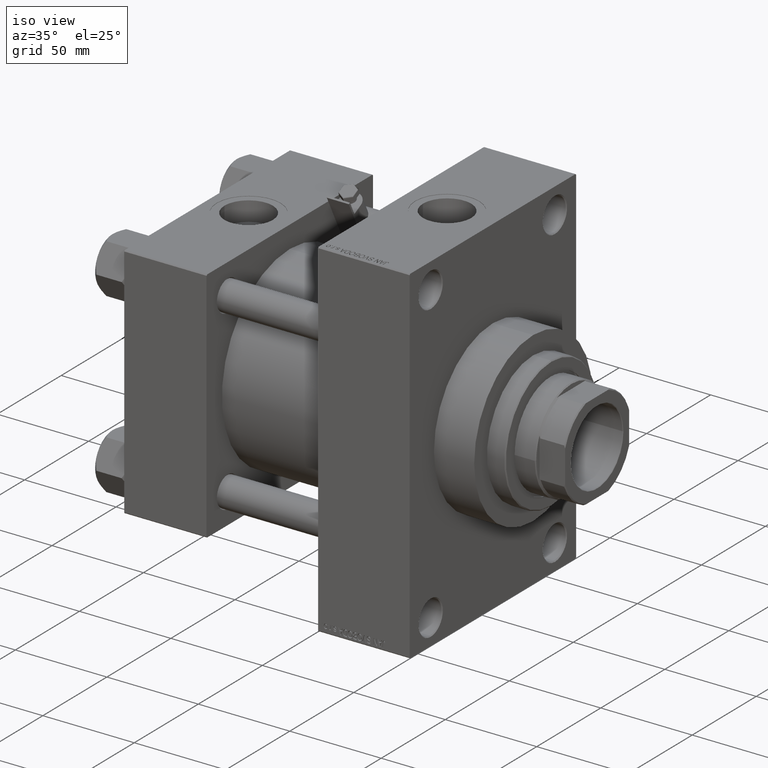
[diagram: clean part render]
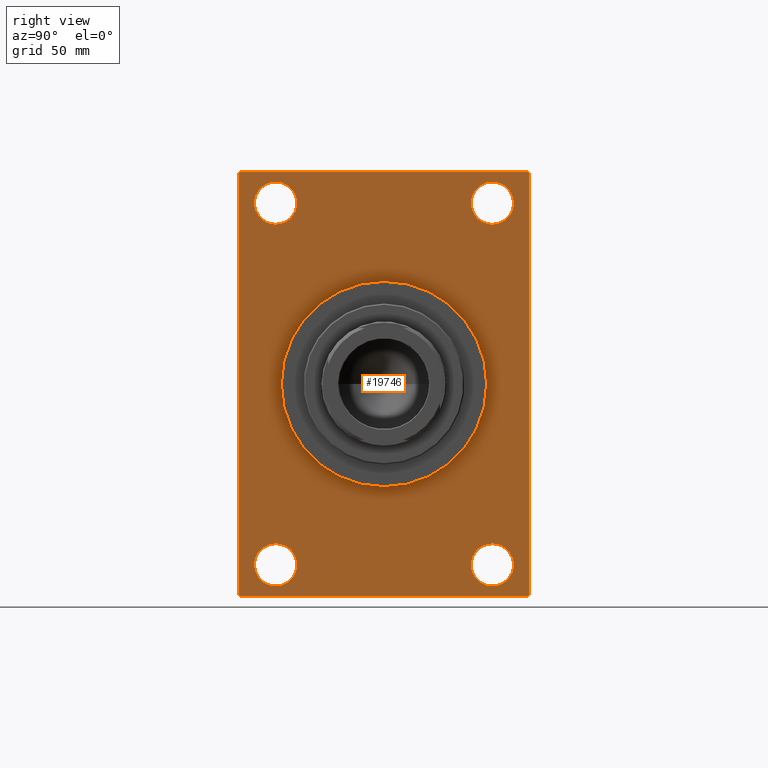
[diagram: tour spotlight — one face highlighted and labeled with its STEP entity id]
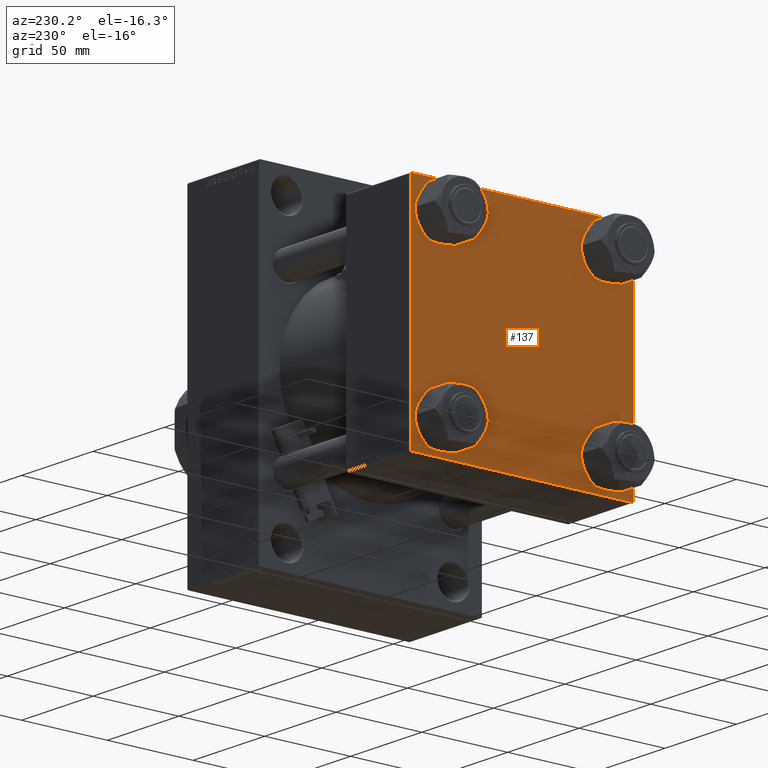
[diagram: tour spotlight — one face highlighted and labeled with its STEP entity id]
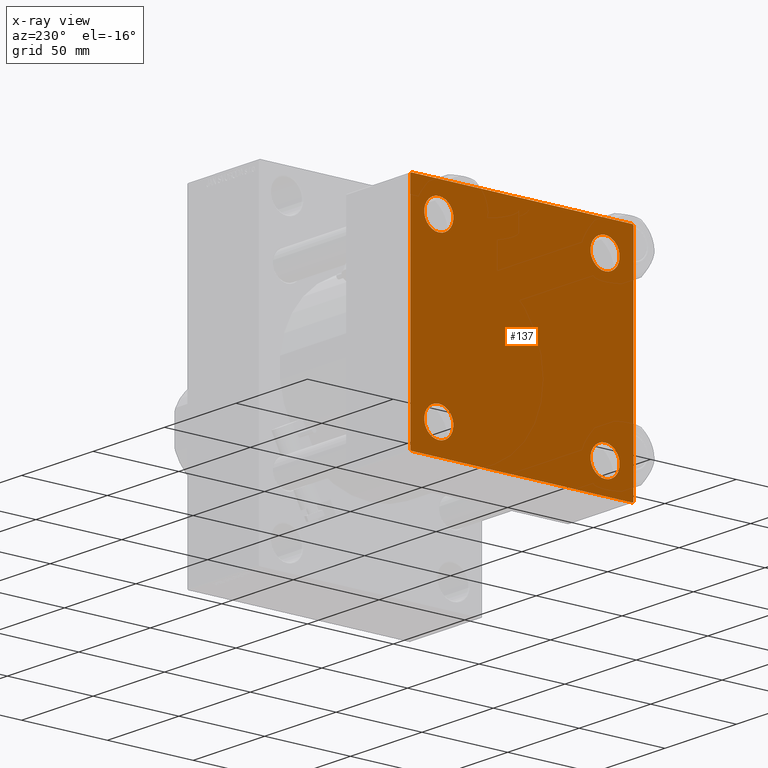
[diagram: x-ray of the same camera — body ghosted, this tour face saturated]
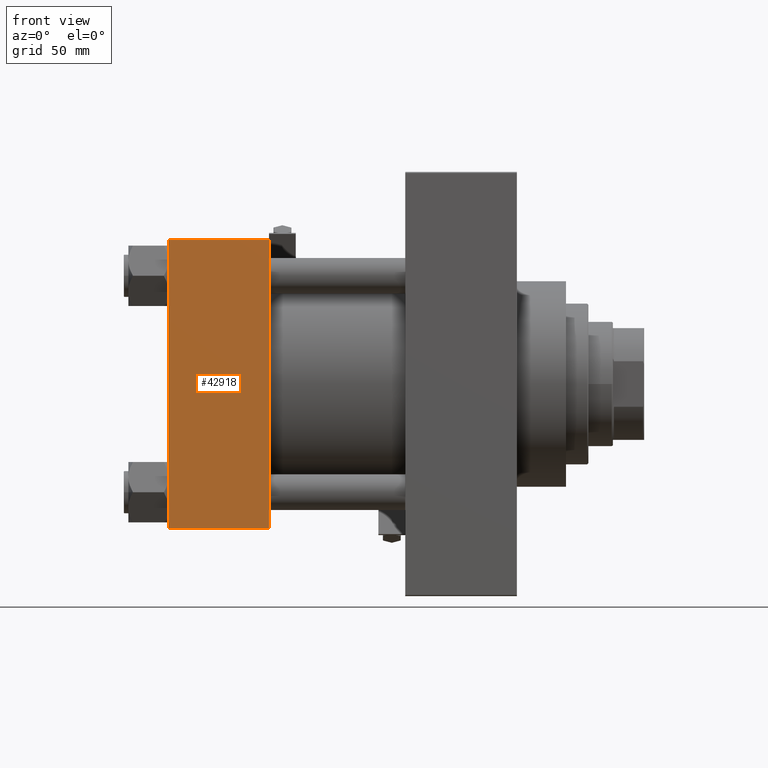
[diagram: tour spotlight — one face highlighted and labeled with its STEP entity id]
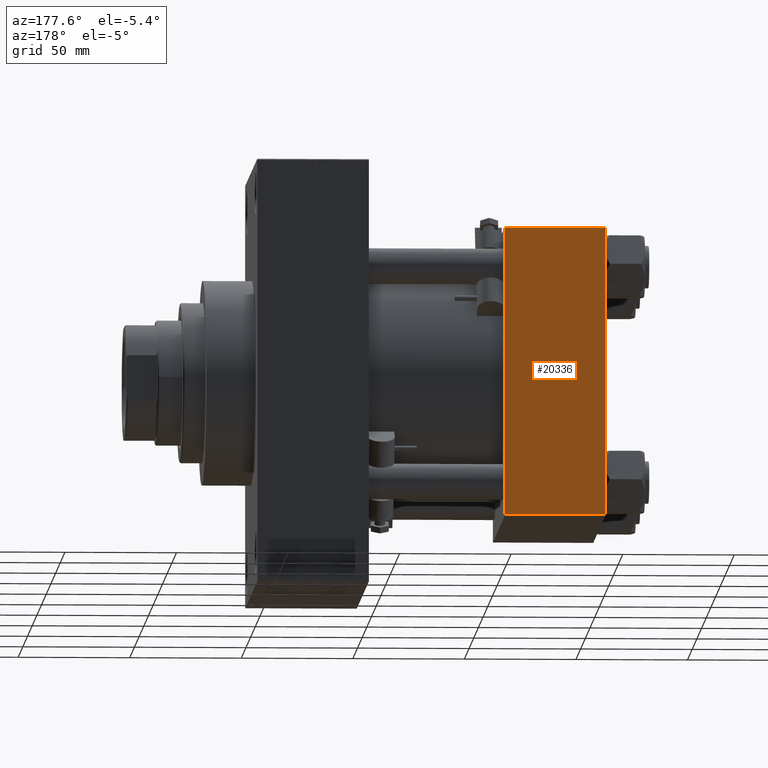
[diagram: tour spotlight — one face highlighted and labeled with its STEP entity id]
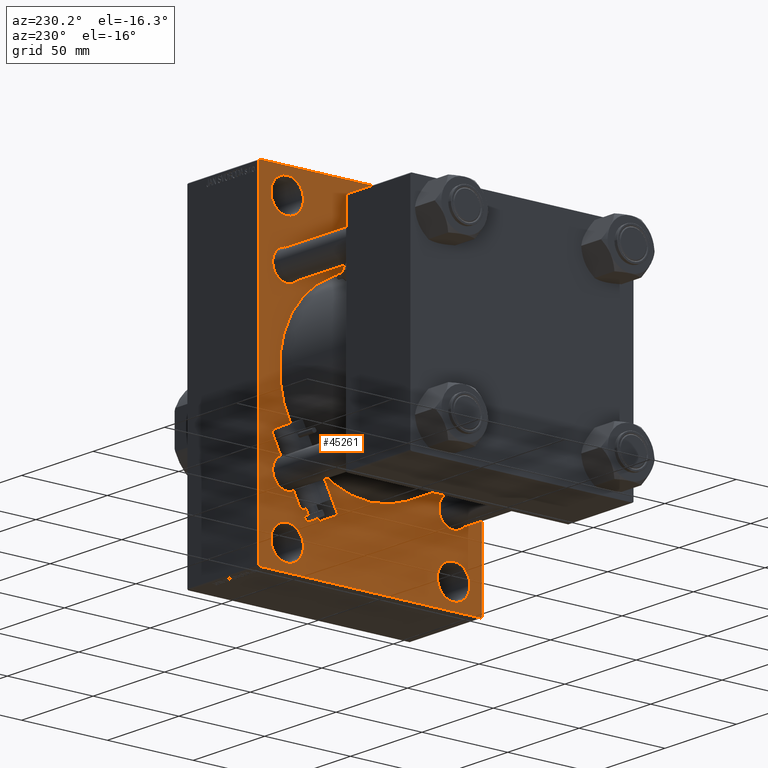
[diagram: tour spotlight — one face highlighted and labeled with its STEP entity id]
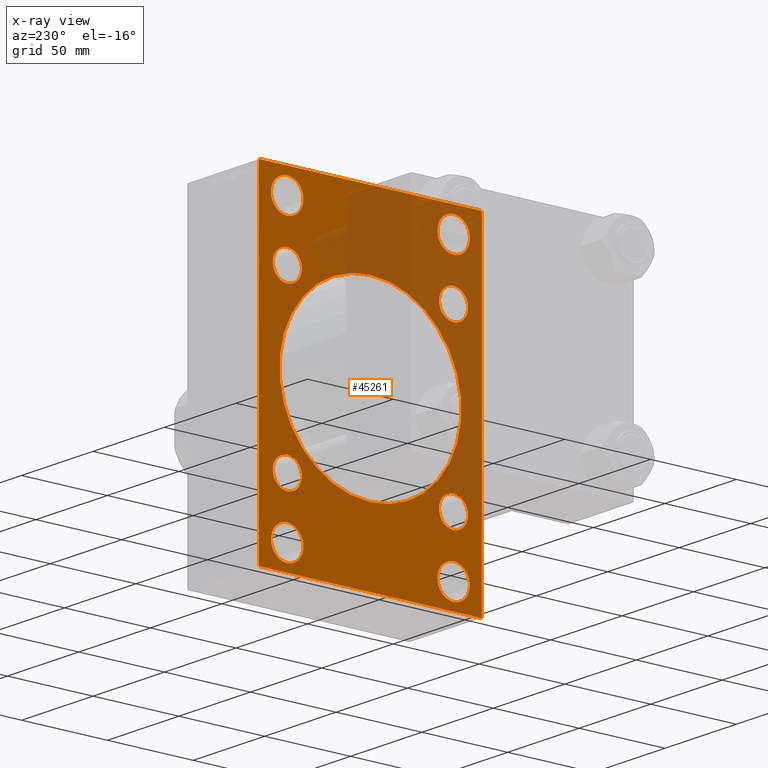
[diagram: x-ray of the same camera — body ghosted, this tour face saturated]
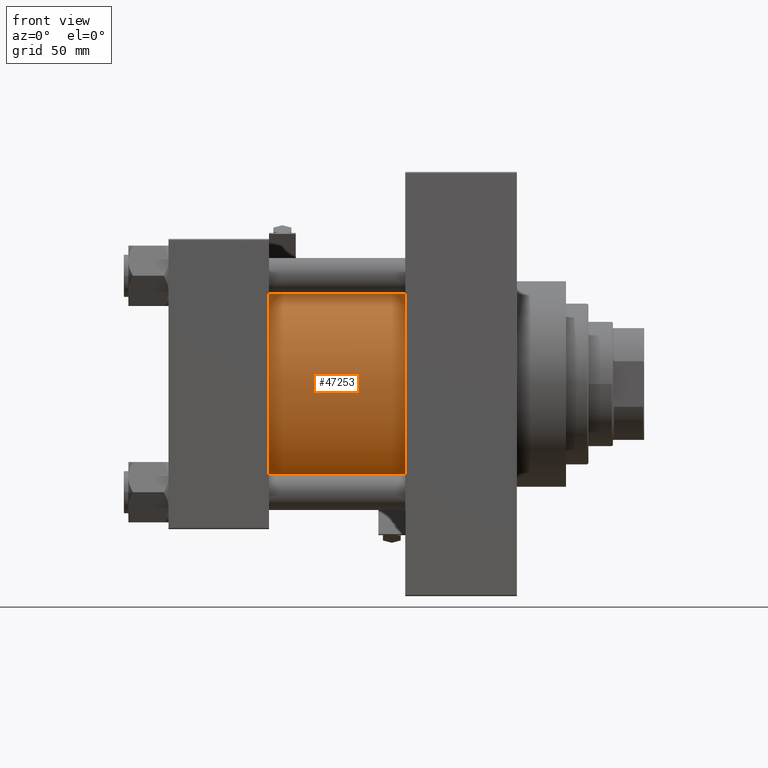
[diagram: tour spotlight — one face highlighted and labeled with its STEP entity id]
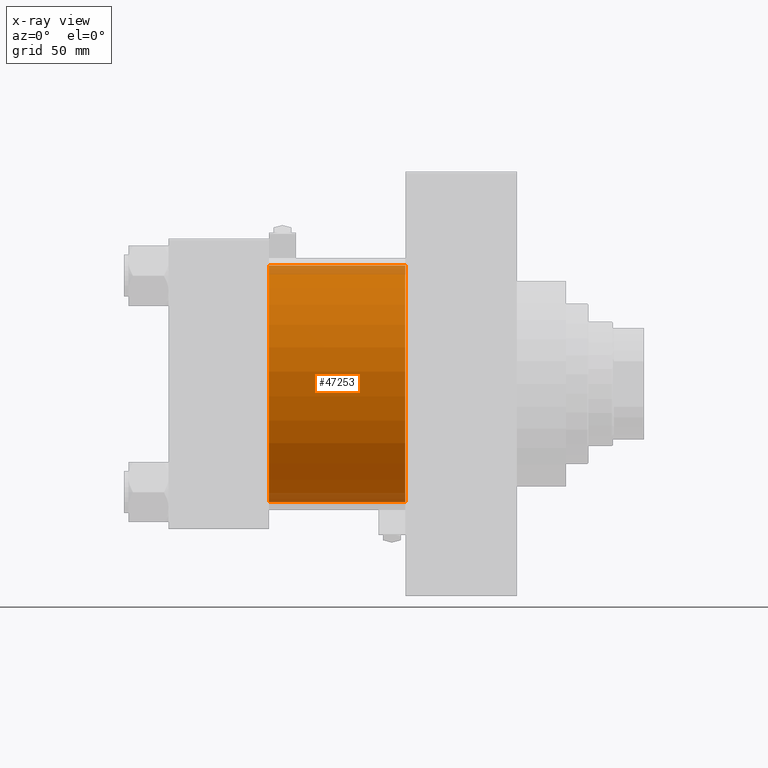
[diagram: x-ray of the same camera — body ghosted, this tour face saturated]
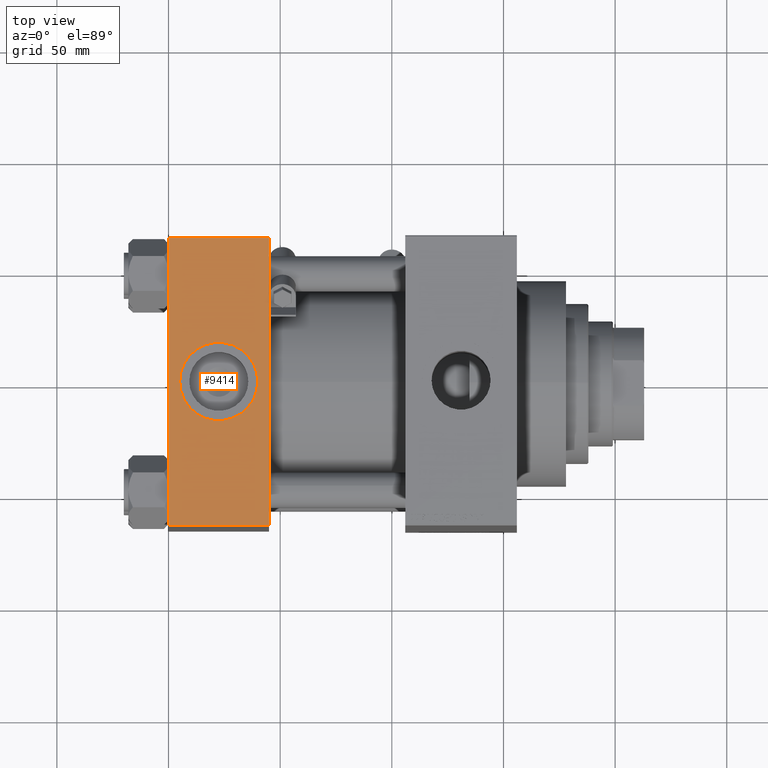
[diagram: tour spotlight — one face highlighted and labeled with its STEP entity id]
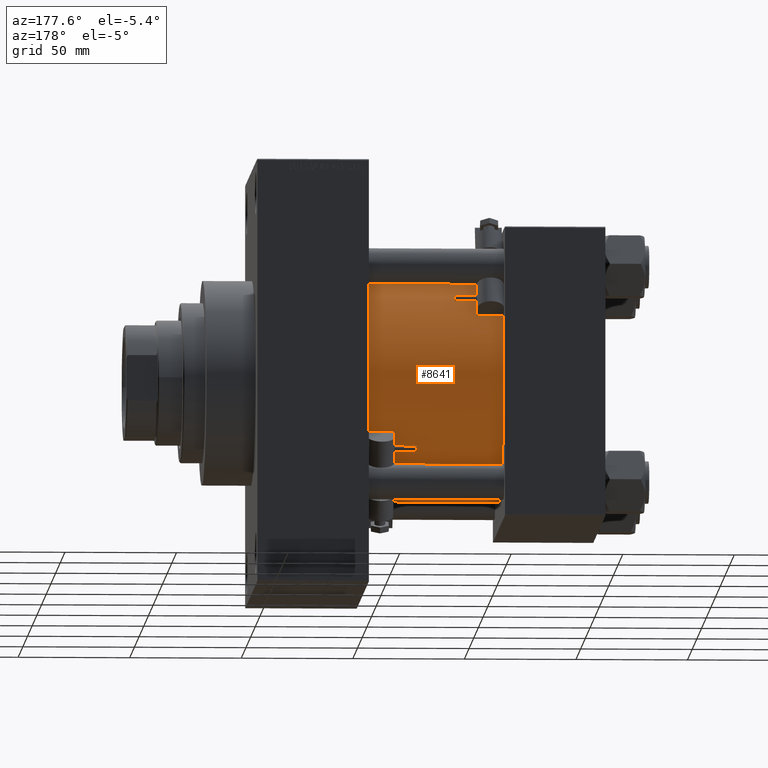
[diagram: tour spotlight — one face highlighted and labeled with its STEP entity id]
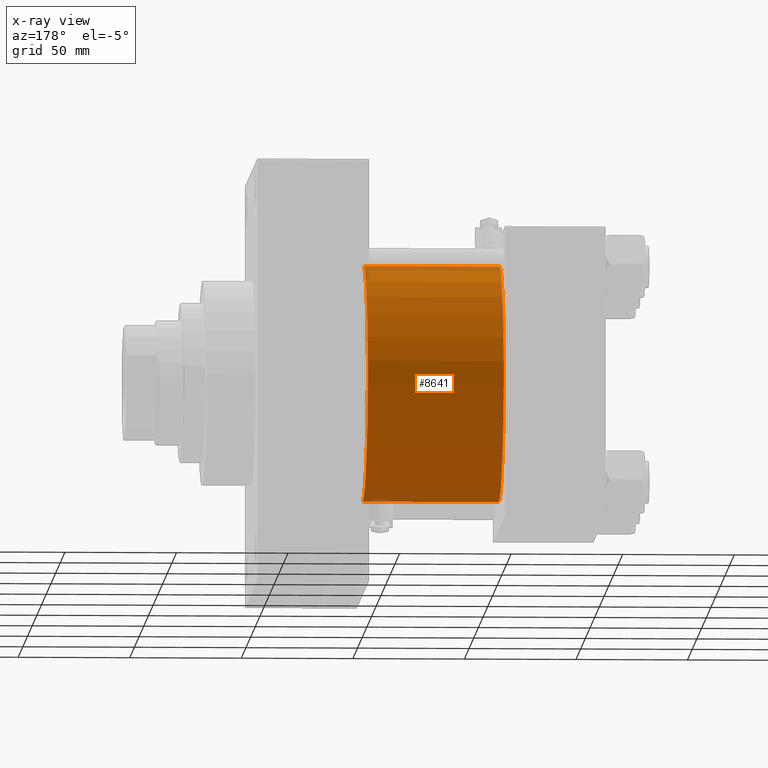
[diagram: x-ray of the same camera — body ghosted, this tour face saturated]
A machine part: a face-by-face anatomy tour. The part has 1215 B-rep faces; the first image is the clean iso view, then the 8 largest visible faces are spotlighted one at a time (largest first), each with its STEP entity span.

Face 1 — right view, entity #19746. In plain terms, the highlighted planar face has unit normal (-1, 0, 0).
Definition (entity closure, byte-faithful):
#147 = VERTEX_POINT ( 'NONE', #11515 ) ;
#280 = CIRCLE ( 'NONE', #8170, 9.499999999999925393 ) ;
#474 = EDGE_CURVE ( 'NONE', #20619, #24363, #33158, .T. ) ;
#908 = DIRECTION ( 'NONE',  ( 0.000000000000000000, 0.000000000000000000, -1.000000000000000000 ) ) ;
#993 = EDGE_CURVE ( 'NONE', #17164, #23913, #12465, .T. ) ;
#1659 = CARTESIAN_POINT ( 'NONE',  ( 156.0000000000000000, -48.49999999999999289, -71.50000000000008527 ) ) ;
#1674 = EDGE_CURVE ( 'NONE', #23913, #17164, #9984, .T. ) ;
#1685 = DIRECTION ( 'NONE',  ( 0.000000000000000000, 0.000000000000000000, 1.000000000000000000 ) ) ;
#1718 = CARTESIAN_POINT ( 'NONE',  ( 156.0000000000000000, 64.99999999999998579, -94.49999999999997158 ) ) ;
#2656 = VERTEX_POINT ( 'NONE', #10175 ) ;
#2801 = DIRECTION ( 'NONE',  ( 0.000000000000000000, 0.000000000000000000, 1.000000000000000000 ) ) ;
#2954 = LINE ( 'NONE', #33291, #34278 ) ;
#3007 = ORIENTED_EDGE ( 'NONE', *, *, #37174, .T. ) ;
#3268 = AXIS2_PLACEMENT_3D ( 'NONE', #22943, #34543, #19962 ) ;
#3954 = DIRECTION ( 'NONE',  ( -1.000000000000000000, 0.000000000000000000, -0.000000000000000000 ) ) ;
#4682 = ORIENTED_EDGE ( 'NONE', *, *, #47637, .T. ) ;
#4787 = CARTESIAN_POINT ( 'NONE',  ( 156.0000000000000000, 48.50000000000000711, -81.00000000000001421 ) ) ;
#4980 = DIRECTION ( 'NONE',  ( 0.000000000000000000, 0.000000000000000000, 1.000000000000000000 ) ) ;
#5020 = DIRECTION ( 'NONE',  ( 0.000000000000000000, 0.000000000000000000, 1.000000000000000000 ) ) ;
#5025 = VECTOR ( 'NONE', #13543, 999.9999999999998863 ) ;
#5312 = PLANE ( 'NONE',  #23952 ) ;
#5322 = CARTESIAN_POINT ( 'NONE',  ( 156.0000000000000000, -48.50000000000000000, 90.49999999999992895 ) ) ;
#5434 = DIRECTION ( 'NONE',  ( 0.000000000000000000, 0.000000000000000000, 1.000000000000000000 ) ) ;
#5759 = ORIENTED_EDGE ( 'NONE', *, *, #993, .T. ) ;
#5879 = VERTEX_POINT ( 'NONE', #42778 ) ;
#5962 = LINE ( 'NONE', #39047, #14020 ) ;
#7583 = CIRCLE ( 'NONE', #10755, 46.00000000000000000 ) ;
#8170 = AXIS2_PLACEMENT_3D ( 'NONE', #27646, #12822, #5434 ) ;
#8255 = VERTEX_POINT ( 'NONE', #20168 ) ;
#8709 = LINE ( 'NONE', #12889, #8962 ) ;
#8760 = FACE_BOUND ( 'NONE', #40469, .T. ) ;
#8962 = VECTOR ( 'NONE', #38828, 999.9999999999998863 ) ;
#9616 = AXIS2_PLACEMENT_3D ( 'NONE', #38799, #39532, #4980 ) ;
#9984 = CIRCLE ( 'NONE', #16338, 9.499999999999925393 ) ;
#10175 = CARTESIAN_POINT ( 'NONE',  ( 156.0000000000000000, -64.50000000000002842, 94.99999999999997158 ) ) ;
#10752 = EDGE_CURVE ( 'NONE', #42284, #13011, #14287, .T. ) ;
#10755 = AXIS2_PLACEMENT_3D ( 'NONE', #41945, #46356, #27594 ) ;
#11515 = CARTESIAN_POINT ( 'NONE',  ( 156.0000000000000000, 64.99999999999997158, 94.49999999999991473 ) ) ;
#11558 = CARTESIAN_POINT ( 'NONE',  ( 156.0000000000000000, 5.633375276077824704E-15, -46.00000000000000000 ) ) ;
#12205 = DIRECTION ( 'NONE',  ( 0.000000000000000000, -1.000000000000000000, 0.000000000000000000 ) ) ;
#12345 = ORIENTED_EDGE ( 'NONE', *, *, #42370, .T. ) ;
#12433 = EDGE_CURVE ( 'NONE', #46965, #8255, #28545, .T. ) ;
#12465 = CIRCLE ( 'NONE', #29013, 9.499999999999925393 ) ;
#12543 = VERTEX_POINT ( 'NONE', #44198 ) ;
#12558 = ORIENTED_EDGE ( 'NONE', *, *, #10752, .T. ) ;
#12822 = DIRECTION ( 'NONE',  ( -1.000000000000000000, 0.000000000000000000, -0.000000000000000000 ) ) ;
#12836 = DIRECTION ( 'NONE',  ( 0.000000000000000000, 0.000000000000000000, 1.000000000000000000 ) ) ;
#12889 = CARTESIAN_POINT ( 'NONE',  ( 156.0000000000000000, -65.00000000000001421, 94.49999999999994316 ) ) ;
#13011 = VERTEX_POINT ( 'NONE', #13772 ) ;
#13429 = DIRECTION ( 'NONE',  ( -1.000000000000000000, 0.000000000000000000, -0.000000000000000000 ) ) ;
#13543 = DIRECTION ( 'NONE',  ( -0.000000000000000000, 0.7071067811865574537, 0.7071067811865376918 ) ) ;
#13572 = VECTOR ( 'NONE', #37813, 1000.000000000000114 ) ;
#13772 = CARTESIAN_POINT ( 'NONE',  ( 156.0000000000000000, 48.50000000000000711, -90.49999999999994316 ) ) ;
#13892 = CARTESIAN_POINT ( 'NONE',  ( 156.0000000000000000, 48.50000000000000711, 90.49999999999992895 ) ) ;
#14020 = VECTOR ( 'NONE', #20526, 1000.000000000000000 ) ;
#14287 = CIRCLE ( 'NONE', #3268, 9.499999999999925393 ) ;
#14575 = ORIENTED_EDGE ( 'NONE', *, *, #474, .F. ) ;
#14703 = CIRCLE ( 'NONE', #17853, 9.499999999999925393 ) ;
#15368 = CARTESIAN_POINT ( 'NONE',  ( 156.0000000000000000, -48.49999999999999289, -81.00000000000001421 ) ) ;
#15742 = CARTESIAN_POINT ( 'NONE',  ( 156.0000000000000000, 0.000000000000000000, 0.000000000000000000 ) ) ;
#16338 = AXIS2_PLACEMENT_3D ( 'NONE', #20014, #17036, #12836 ) ;
#16898 = DIRECTION ( 'NONE',  ( -0.000000000000000000, 0.000000000000000000, 1.000000000000000000 ) ) ;
#17036 = DIRECTION ( 'NONE',  ( -1.000000000000000000, 0.000000000000000000, -0.000000000000000000 ) ) ;
#17164 = VERTEX_POINT ( 'NONE', #5322 ) ;
#17231 = CARTESIAN_POINT ( 'NONE',  ( 156.0000000000000000, -48.49999999999999289, -90.49999999999994316 ) ) ;
#17312 = EDGE_LOOP ( 'NONE', ( #32033, #19337 ) ) ;
#17413 = ORIENTED_EDGE ( 'NONE', *, *, #43749, .T. ) ;
#17557 = CARTESIAN_POINT ( 'NONE',  ( 156.0000000000000000, -48.50000000000000000, 71.50000000000007105 ) ) ;
#17853 = AXIS2_PLACEMENT_3D ( 'NONE', #4787, #39337, #5020 ) ;
#18366 = DIRECTION ( 'NONE',  ( 0.000000000000000000, -1.000000000000000000, -1.067522139062650425E-16 ) ) ;
#18526 = EDGE_CURVE ( 'NONE', #41124, #18594, #42855, .T. ) ;
#18558 = CARTESIAN_POINT ( 'NONE',  ( 156.0000000000000000, -65.00000000000001421, -94.50000000000002842 ) ) ;
#18594 = VERTEX_POINT ( 'NONE', #17231 ) ;
#18597 = DIRECTION ( 'NONE',  ( -1.000000000000000000, 0.000000000000000000, -0.000000000000000000 ) ) ;
#18824 = LINE ( 'NONE', #44987, #13572 ) ;
#19337 = ORIENTED_EDGE ( 'NONE', *, *, #12433, .T. ) ;
#19746 = ADVANCED_FACE ( 'NONE', ( #47012, #8760, #23809, #39131, #32433, #46523 ), #5312, .F. ) ;
#19962 = DIRECTION ( 'NONE',  ( 0.000000000000000000, 0.000000000000000000, 1.000000000000000000 ) ) ;
#20014 = CARTESIAN_POINT ( 'NONE',  ( 156.0000000000000000, -48.50000000000000000, 81.00000000000000000 ) ) ;
#20168 = CARTESIAN_POINT ( 'NONE',  ( 156.0000000000000000, 48.50000000000000711, 71.50000000000007105 ) ) ;
#20187 = ORIENTED_EDGE ( 'NONE', *, *, #46565, .F. ) ;
#20526 = DIRECTION ( 'NONE',  ( 0.000000000000000000, 0.000000000000000000, -1.000000000000000000 ) ) ;
#20619 = VERTEX_POINT ( 'NONE', #35175 ) ;
#21206 = ORIENTED_EDGE ( 'NONE', *, *, #18526, .T. ) ;
#21555 = AXIS2_PLACEMENT_3D ( 'NONE', #15368, #24142, #1685 ) ;
#22943 = CARTESIAN_POINT ( 'NONE',  ( 156.0000000000000000, 48.50000000000000711, -81.00000000000001421 ) ) ;
#23205 = LINE ( 'NONE', #44948, #31257 ) ;
#23809 = FACE_BOUND ( 'NONE', #29627, .T. ) ;
#23913 = VERTEX_POINT ( 'NONE', #17557 ) ;
#23952 = AXIS2_PLACEMENT_3D ( 'NONE', #24052, #13429, #16898 ) ;
#24052 = CARTESIAN_POINT ( 'NONE',  ( 156.0000000000000000, 0.000000000000000000, 0.000000000000000000 ) ) ;
#24142 = DIRECTION ( 'NONE',  ( -1.000000000000000000, 0.000000000000000000, -0.000000000000000000 ) ) ;
#24219 = EDGE_CURVE ( 'NONE', #48540, #12543, #7583, .T. ) ;
#24363 = VERTEX_POINT ( 'NONE', #33480 ) ;
#25761 = EDGE_CURVE ( 'NONE', #147, #40794, #23205, .T. ) ;
#25915 = CARTESIAN_POINT ( 'NONE',  ( 156.0000000000000000, -48.50000000000000000, 81.00000000000000000 ) ) ;
#25941 = DIRECTION ( 'NONE',  ( 0.000000000000000000, 7.304098846218135653E-17, -1.000000000000000000 ) ) ;
#26091 = CARTESIAN_POINT ( 'NONE',  ( 156.0000000000000000, 48.50000000000000711, -71.50000000000008527 ) ) ;
#27117 = EDGE_LOOP ( 'NONE', ( #20187, #29882 ) ) ;
#27360 = VERTEX_POINT ( 'NONE', #27520 ) ;
#27520 = CARTESIAN_POINT ( 'NONE',  ( 156.0000000000000000, -65.00000000000001421, 94.49999999999994316 ) ) ;
#27594 = DIRECTION ( 'NONE',  ( 0.000000000000000000, 0.000000000000000000, -1.000000000000000000 ) ) ;
#27646 = CARTESIAN_POINT ( 'NONE',  ( 156.0000000000000000, 48.50000000000000711, 81.00000000000000000 ) ) ;
#28464 = EDGE_CURVE ( 'NONE', #13011, #42284, #14703, .T. ) ;
#28545 = CIRCLE ( 'NONE', #9616, 9.499999999999925393 ) ;
#29013 = AXIS2_PLACEMENT_3D ( 'NONE', #25915, #3954, #30347 ) ;
#29627 = EDGE_LOOP ( 'NONE', ( #38745, #12558 ) ) ;
#29882 = ORIENTED_EDGE ( 'NONE', *, *, #24219, .F. ) ;
#30341 = CIRCLE ( 'NONE', #41373, 9.499999999999925393 ) ;
#30347 = DIRECTION ( 'NONE',  ( 0.000000000000000000, 0.000000000000000000, 1.000000000000000000 ) ) ;
#30536 = ORIENTED_EDGE ( 'NONE', *, *, #1674, .T. ) ;
#30848 = ORIENTED_EDGE ( 'NONE', *, *, #31933, .T. ) ;
#31098 = EDGE_LOOP ( 'NONE', ( #30848, #17413, #14575, #39487, #45391, #3007, #4682, #38185 ) ) ;
#31169 = VECTOR ( 'NONE', #12205, 1000.000000000000000 ) ;
#31257 = VECTOR ( 'NONE', #25941, 1000.000000000000000 ) ;
#31903 = CIRCLE ( 'NONE', #43747, 46.00000000000000000 ) ;
#31933 = EDGE_CURVE ( 'NONE', #27360, #36361, #5962, .T. ) ;
#32033 = ORIENTED_EDGE ( 'NONE', *, *, #40704, .T. ) ;
#32433 = FACE_BOUND ( 'NONE', #27117, .T. ) ;
#33158 = LINE ( 'NONE', #33411, #43964 ) ;
#33291 = CARTESIAN_POINT ( 'NONE',  ( 156.0000000000000000, -64.49999999999998579, -95.00000000000002842 ) ) ;
#33411 = CARTESIAN_POINT ( 'NONE',  ( 156.0000000000000000, 64.99999999999998579, -95.00000000000001421 ) ) ;
#33480 = CARTESIAN_POINT ( 'NONE',  ( 156.0000000000000000, -64.49999999999998579, -95.00000000000002842 ) ) ;
#34278 = VECTOR ( 'NONE', #40974, 1000.000000000000000 ) ;
#34543 = DIRECTION ( 'NONE',  ( -1.000000000000000000, 0.000000000000000000, -0.000000000000000000 ) ) ;
#35138 = CARTESIAN_POINT ( 'NONE',  ( 156.0000000000000000, 64.99999999999997158, 94.99999999999997158 ) ) ;
#35175 = CARTESIAN_POINT ( 'NONE',  ( 156.0000000000000000, 64.49999999999992895, -95.00000000000001421 ) ) ;
#36247 = CARTESIAN_POINT ( 'NONE',  ( 156.0000000000000000, 64.99999999999998579, -94.49999999999997158 ) ) ;
#36361 = VERTEX_POINT ( 'NONE', #18558 ) ;
#36489 = LINE ( 'NONE', #36247, #5025 ) ;
#37174 = EDGE_CURVE ( 'NONE', #147, #5879, #18824, .T. ) ;
#37779 = EDGE_LOOP ( 'NONE', ( #30536, #5759 ) ) ;
#37813 = DIRECTION ( 'NONE',  ( 0.000000000000000000, -0.7071067811865474617, 0.7071067811865474617 ) ) ;
#38185 = ORIENTED_EDGE ( 'NONE', *, *, #41757, .T. ) ;
#38745 = ORIENTED_EDGE ( 'NONE', *, *, #28464, .T. ) ;
#38799 = CARTESIAN_POINT ( 'NONE',  ( 156.0000000000000000, 48.50000000000000711, 81.00000000000000000 ) ) ;
#38828 = DIRECTION ( 'NONE',  ( -0.000000000000000000, -0.7071067811865180408, -0.7071067811865771047 ) ) ;
#39047 = CARTESIAN_POINT ( 'NONE',  ( 156.0000000000000000, -65.00000000000001421, 94.99999999999997158 ) ) ;
#39131 = FACE_BOUND ( 'NONE', #17312, .T. ) ;
#39337 = DIRECTION ( 'NONE',  ( -1.000000000000000000, 0.000000000000000000, -0.000000000000000000 ) ) ;
#39487 = ORIENTED_EDGE ( 'NONE', *, *, #39981, .T. ) ;
#39532 = DIRECTION ( 'NONE',  ( -1.000000000000000000, 0.000000000000000000, -0.000000000000000000 ) ) ;
#39981 = EDGE_CURVE ( 'NONE', #20619, #40794, #36489, .T. ) ;
#40081 = CARTESIAN_POINT ( 'NONE',  ( 156.0000000000000000, -48.49999999999999289, -81.00000000000001421 ) ) ;
#40469 = EDGE_LOOP ( 'NONE', ( #12345, #21206 ) ) ;
#40704 = EDGE_CURVE ( 'NONE', #8255, #46965, #280, .T. ) ;
#40794 = VERTEX_POINT ( 'NONE', #1718 ) ;
#40974 = DIRECTION ( 'NONE',  ( 0.000000000000000000, 0.7071067811865672237, -0.7071067811865279218 ) ) ;
#41124 = VERTEX_POINT ( 'NONE', #1659 ) ;
#41373 = AXIS2_PLACEMENT_3D ( 'NONE', #40081, #18597, #2801 ) ;
#41757 = EDGE_CURVE ( 'NONE', #2656, #27360, #8709, .T. ) ;
#41945 = CARTESIAN_POINT ( 'NONE',  ( 156.0000000000000000, 0.000000000000000000, 0.000000000000000000 ) ) ;
#42284 = VERTEX_POINT ( 'NONE', #26091 ) ;
#42370 = EDGE_CURVE ( 'NONE', #18594, #41124, #30341, .T. ) ;
#42778 = CARTESIAN_POINT ( 'NONE',  ( 156.0000000000000000, 64.49999999999991473, 94.99999999999997158 ) ) ;
#42855 = CIRCLE ( 'NONE', #21555, 9.499999999999925393 ) ;
#43747 = AXIS2_PLACEMENT_3D ( 'NONE', #15742, #45367, #908 ) ;
#43749 = EDGE_CURVE ( 'NONE', #36361, #24363, #2954, .T. ) ;
#43964 = VECTOR ( 'NONE', #18366, 1000.000000000000000 ) ;
#44198 = CARTESIAN_POINT ( 'NONE',  ( 156.0000000000000000, 0.000000000000000000, 46.00000000000000000 ) ) ;
#44948 = CARTESIAN_POINT ( 'NONE',  ( 156.0000000000000000, 64.99999999999997158, 94.99999999999997158 ) ) ;
#44987 = CARTESIAN_POINT ( 'NONE',  ( 156.0000000000000000, 64.49999999999991473, 94.99999999999997158 ) ) ;
#45367 = DIRECTION ( 'NONE',  ( 1.000000000000000000, 0.000000000000000000, 0.000000000000000000 ) ) ;
#45391 = ORIENTED_EDGE ( 'NONE', *, *, #25761, .F. ) ;
#46356 = DIRECTION ( 'NONE',  ( 1.000000000000000000, 0.000000000000000000, 0.000000000000000000 ) ) ;
#46523 = FACE_OUTER_BOUND ( 'NONE', #31098, .T. ) ;
#46565 = EDGE_CURVE ( 'NONE', #12543, #48540, #31903, .T. ) ;
#46736 = LINE ( 'NONE', #35138, #31169 ) ;
#46965 = VERTEX_POINT ( 'NONE', #13892 ) ;
#47012 = FACE_BOUND ( 'NONE', #37779, .T. ) ;
#47637 = EDGE_CURVE ( 'NONE', #5879, #2656, #46736, .T. ) ;
#48540 = VERTEX_POINT ( 'NONE', #11558 ) ;

Face 2 — auxiliary view, entity #137. An x-ray twin of the same camera follows (body ghosted, this face saturated) — the face is partly hidden behind the body. In plain terms, the highlighted planar face has unit normal (-1, 0, 0).
Definition (entity closure, byte-faithful):
#121 = AXIS2_PLACEMENT_3D ( 'NONE', #42815, #385, #34906 ) ;
#137 = ADVANCED_FACE ( 'NONE', ( #19657, #42362, #880, #31232, #37912 ), #15714, .T. ) ;
#352 = EDGE_CURVE ( 'NONE', #30111, #42662, #3790, .T. ) ;
#385 = DIRECTION ( 'NONE',  ( 1.000000000000000000, -0.000000000000000000, 0.000000000000000000 ) ) ;
#602 = ORIENTED_EDGE ( 'NONE', *, *, #25503, .T. ) ;
#619 = DIRECTION ( 'NONE',  ( 0.000000000000000000, 0.000000000000000000, 1.000000000000000000 ) ) ;
#634 = CARTESIAN_POINT ( 'NONE',  ( 0.000000000000000000, -48.44999999999999574, 56.95000000000003837 ) ) ;
#880 = FACE_BOUND ( 'NONE', #24812, .T. ) ;
#1012 = VERTEX_POINT ( 'NONE', #29604 ) ;
#1388 = CARTESIAN_POINT ( 'NONE',  ( 0.000000000000000000, 48.45000000000000995, 48.45000000000001705 ) ) ;
#1430 = CARTESIAN_POINT ( 'NONE',  ( 0.000000000000000000, 48.45000000000000995, -48.45000000000001705 ) ) ;
#1870 = DIRECTION ( 'NONE',  ( 0.000000000000000000, 0.000000000000000000, 1.000000000000000000 ) ) ;
#2083 = AXIS2_PLACEMENT_3D ( 'NONE', #48766, #26541, #619 ) ;
#2180 = AXIS2_PLACEMENT_3D ( 'NONE', #44040, #48486, #47734 ) ;
#2653 = ORIENTED_EDGE ( 'NONE', *, *, #14941, .T. ) ;
#2660 = LINE ( 'NONE', #40684, #42436 ) ;
#2684 = AXIS2_PLACEMENT_3D ( 'NONE', #34583, #27652, #12117 ) ;
#2817 = ORIENTED_EDGE ( 'NONE', *, *, #11925, .T. ) ;
#3118 = DIRECTION ( 'NONE',  ( 0.000000000000000000, -1.000000000000000000, -1.067522139062650425E-16 ) ) ;
#3240 = ORIENTED_EDGE ( 'NONE', *, *, #9479, .T. ) ;
#3790 = CIRCLE ( 'NONE', #2180, 8.500000000000007105 ) ;
#3807 = EDGE_CURVE ( 'NONE', #35032, #37888, #38006, .T. ) ;
#4088 = EDGE_CURVE ( 'NONE', #20768, #6302, #2660, .T. ) ;
#4108 = EDGE_CURVE ( 'NONE', #27052, #6302, #25611, .T. ) ;
#4262 = CIRCLE ( 'NONE', #2684, 8.500000000000007105 ) ;
#5486 = CARTESIAN_POINT ( 'NONE',  ( 0.000000000000000000, -48.44999999999999574, -56.95000000000003837 ) ) ;
#6271 = ORIENTED_EDGE ( 'NONE', *, *, #3807, .T. ) ;
#6302 = VERTEX_POINT ( 'NONE', #9861 ) ;
#6759 = DIRECTION ( 'NONE',  ( 0.000000000000000000, 0.000000000000000000, 1.000000000000000000 ) ) ;
#6860 = DIRECTION ( 'NONE',  ( 0.000000000000000000, 0.000000000000000000, -1.000000000000000000 ) ) ;
#7205 = ORIENTED_EDGE ( 'NONE', *, *, #20243, .T. ) ;
#7218 = CARTESIAN_POINT ( 'NONE',  ( 0.000000000000000000, 65.00000000000000000, -64.49999999999995737 ) ) ;
#7450 = ORIENTED_EDGE ( 'NONE', *, *, #36607, .T. ) ;
#7810 = DIRECTION ( 'NONE',  ( -0.000000000000000000, 0.000000000000000000, 1.000000000000000000 ) ) ;
#7951 = AXIS2_PLACEMENT_3D ( 'NONE', #26260, #14664, #6759 ) ;
#8368 = EDGE_CURVE ( 'NONE', #42662, #30111, #9762, .T. ) ;
#9479 = EDGE_CURVE ( 'NONE', #13392, #37459, #16605, .T. ) ;
#9762 = CIRCLE ( 'NONE', #37356, 8.500000000000007105 ) ;
#9861 = CARTESIAN_POINT ( 'NONE',  ( 0.000000000000000000, -65.00000000000000000, -64.49999999999991473 ) ) ;
#10263 = CARTESIAN_POINT ( 'NONE',  ( 0.000000000000000000, -48.44999999999999574, -48.45000000000003126 ) ) ;
#10433 = CIRCLE ( 'NONE', #21460, 8.500000000000007105 ) ;
#11925 = EDGE_CURVE ( 'NONE', #37459, #13392, #10433, .T. ) ;
#12117 = DIRECTION ( 'NONE',  ( 0.000000000000000000, 0.000000000000000000, 1.000000000000000000 ) ) ;
#12280 = LINE ( 'NONE', #15756, #19867 ) ;
#13342 = CARTESIAN_POINT ( 'NONE',  ( 0.000000000000000000, 64.74999999999998579, 64.74999999999998579 ) ) ;
#13392 = VERTEX_POINT ( 'NONE', #48263 ) ;
#13535 = EDGE_LOOP ( 'NONE', ( #26119, #27245 ) ) ;
#13969 = DIRECTION ( 'NONE',  ( 1.000000000000000000, -0.000000000000000000, 0.000000000000000000 ) ) ;
#14123 = ORIENTED_EDGE ( 'NONE', *, *, #4108, .F. ) ;
#14664 = DIRECTION ( 'NONE',  ( 1.000000000000000000, -0.000000000000000000, 0.000000000000000000 ) ) ;
#14941 = EDGE_CURVE ( 'NONE', #14969, #46733, #30113, .T. ) ;
#14969 = VERTEX_POINT ( 'NONE', #634 ) ;
#15003 = CARTESIAN_POINT ( 'NONE',  ( 0.000000000000000000, -65.00000000000000000, 65.00000000000000000 ) ) ;
#15714 = PLANE ( 'NONE',  #27410 ) ;
#15756 = CARTESIAN_POINT ( 'NONE',  ( 0.000000000000000000, 64.74999999999997158, -64.74999999999997158 ) ) ;
#16605 = CIRCLE ( 'NONE', #7951, 8.500000000000007105 ) ;
#17664 = LINE ( 'NONE', #37410, #40642 ) ;
#17680 = LINE ( 'NONE', #25582, #46408 ) ;
#17825 = CIRCLE ( 'NONE', #2083, 8.500000000000007105 ) ;
#17835 = ORIENTED_EDGE ( 'NONE', *, *, #22286, .F. ) ;
#18985 = CARTESIAN_POINT ( 'NONE',  ( 0.000000000000000000, -64.49999999999997158, 65.00000000000000000 ) ) ;
#19261 = CARTESIAN_POINT ( 'NONE',  ( 0.000000000000000000, 65.00000000000000000, 65.00000000000001421 ) ) ;
#19657 = FACE_BOUND ( 'NONE', #32303, .T. ) ;
#19867 = VECTOR ( 'NONE', #27339, 1000.000000000000114 ) ;
#19905 = EDGE_CURVE ( 'NONE', #22570, #44115, #4262, .T. ) ;
#19949 = DIRECTION ( 'NONE',  ( 0.000000000000000000, 0.000000000000000000, 1.000000000000000000 ) ) ;
#20243 = EDGE_CURVE ( 'NONE', #44115, #22570, #23204, .T. ) ;
#20253 = ORIENTED_EDGE ( 'NONE', *, *, #38016, .T. ) ;
#20509 = DIRECTION ( 'NONE',  ( -0.000000000000000000, 0.7071067811865672237, 0.7071067811865279218 ) ) ;
#20768 = VERTEX_POINT ( 'NONE', #43330 ) ;
#21460 = AXIS2_PLACEMENT_3D ( 'NONE', #1388, #39159, #1870 ) ;
#22286 = EDGE_CURVE ( 'NONE', #1012, #40983, #17664, .T. ) ;
#22398 = DIRECTION ( 'NONE',  ( 0.000000000000000000, -0.7071067811865279218, 0.7071067811865671127 ) ) ;
#22447 = EDGE_LOOP ( 'NONE', ( #6271, #7450, #39526, #23974, #14123, #20253, #17835, #602 ) ) ;
#22570 = VERTEX_POINT ( 'NONE', #28188 ) ;
#23175 = DIRECTION ( 'NONE',  ( 1.000000000000000000, -0.000000000000000000, 0.000000000000000000 ) ) ;
#23204 = CIRCLE ( 'NONE', #33443, 8.500000000000007105 ) ;
#23974 = ORIENTED_EDGE ( 'NONE', *, *, #4088, .T. ) ;
#24074 = CARTESIAN_POINT ( 'NONE',  ( 0.000000000000000000, 48.45000000000000995, 39.95000000000000284 ) ) ;
#24286 = VECTOR ( 'NONE', #6860, 1000.000000000000000 ) ;
#24589 = DIRECTION ( 'NONE',  ( 0.000000000000000000, 0.000000000000000000, 1.000000000000000000 ) ) ;
#24812 = EDGE_LOOP ( 'NONE', ( #38392, #7205 ) ) ;
#25077 = EDGE_CURVE ( 'NONE', #46733, #14969, #17825, .T. ) ;
#25503 = EDGE_CURVE ( 'NONE', #1012, #35032, #25683, .T. ) ;
#25582 = CARTESIAN_POINT ( 'NONE',  ( 0.000000000000000000, 65.00000000000000000, -64.99999999999998579 ) ) ;
#25611 = LINE ( 'NONE', #15003, #24286 ) ;
#25683 = LINE ( 'NONE', #13342, #36783 ) ;
#26119 = ORIENTED_EDGE ( 'NONE', *, *, #352, .T. ) ;
#26260 = CARTESIAN_POINT ( 'NONE',  ( 0.000000000000000000, 48.45000000000000995, 48.45000000000001705 ) ) ;
#26541 = DIRECTION ( 'NONE',  ( 1.000000000000000000, -0.000000000000000000, 0.000000000000000000 ) ) ;
#27000 = CARTESIAN_POINT ( 'NONE',  ( 0.000000000000000000, 48.45000000000000995, -56.95000000000002416 ) ) ;
#27052 = VERTEX_POINT ( 'NONE', #32003 ) ;
#27245 = ORIENTED_EDGE ( 'NONE', *, *, #8368, .T. ) ;
#27339 = DIRECTION ( 'NONE',  ( -0.000000000000000000, -0.7071067811865474617, -0.7071067811865474617 ) ) ;
#27410 = AXIS2_PLACEMENT_3D ( 'NONE', #37672, #45335, #7810 ) ;
#27652 = DIRECTION ( 'NONE',  ( 1.000000000000000000, -0.000000000000000000, 0.000000000000000000 ) ) ;
#28188 = CARTESIAN_POINT ( 'NONE',  ( 0.000000000000000000, 48.45000000000000995, -39.95000000000000284 ) ) ;
#29604 = CARTESIAN_POINT ( 'NONE',  ( 0.000000000000000000, 64.49999999999997158, 65.00000000000001421 ) ) ;
#30111 = VERTEX_POINT ( 'NONE', #45912 ) ;
#30113 = CIRCLE ( 'NONE', #121, 8.500000000000007105 ) ;
#31232 = FACE_BOUND ( 'NONE', #33075, .T. ) ;
#32003 = CARTESIAN_POINT ( 'NONE',  ( 0.000000000000000000, -65.00000000000000000, 64.50000000000000000 ) ) ;
#32106 = CARTESIAN_POINT ( 'NONE',  ( -0.000000000000000000, -64.74999999999819522, 64.75000000000179057 ) ) ;
#32303 = EDGE_LOOP ( 'NONE', ( #2653, #33706 ) ) ;
#33075 = EDGE_LOOP ( 'NONE', ( #3240, #2817 ) ) ;
#33443 = AXIS2_PLACEMENT_3D ( 'NONE', #1430, #23175, #19949 ) ;
#33624 = EDGE_CURVE ( 'NONE', #47610, #20768, #17680, .T. ) ;
#33706 = ORIENTED_EDGE ( 'NONE', *, *, #25077, .T. ) ;
#34302 = DIRECTION ( 'NONE',  ( 0.000000000000000000, 0.000000000000000000, -1.000000000000000000 ) ) ;
#34583 = CARTESIAN_POINT ( 'NONE',  ( 0.000000000000000000, 48.45000000000000995, -48.45000000000001705 ) ) ;
#34906 = DIRECTION ( 'NONE',  ( 0.000000000000000000, 0.000000000000000000, 1.000000000000000000 ) ) ;
#35032 = VERTEX_POINT ( 'NONE', #39372 ) ;
#36607 = EDGE_CURVE ( 'NONE', #37888, #47610, #12280, .T. ) ;
#36783 = VECTOR ( 'NONE', #43468, 1000.000000000000114 ) ;
#37267 = VECTOR ( 'NONE', #20509, 1000.000000000000000 ) ;
#37356 = AXIS2_PLACEMENT_3D ( 'NONE', #10263, #13969, #24589 ) ;
#37410 = CARTESIAN_POINT ( 'NONE',  ( 0.000000000000000000, 65.00000000000000000, 65.00000000000001421 ) ) ;
#37459 = VERTEX_POINT ( 'NONE', #24074 ) ;
#37672 = CARTESIAN_POINT ( 'NONE',  ( 0.000000000000000000, 0.000000000000000000, 0.000000000000000000 ) ) ;
#37888 = VERTEX_POINT ( 'NONE', #7218 ) ;
#37912 = FACE_OUTER_BOUND ( 'NONE', #22447, .T. ) ;
#38006 = LINE ( 'NONE', #19261, #48703 ) ;
#38016 = EDGE_CURVE ( 'NONE', #27052, #40983, #43462, .T. ) ;
#38392 = ORIENTED_EDGE ( 'NONE', *, *, #19905, .T. ) ;
#39159 = DIRECTION ( 'NONE',  ( 1.000000000000000000, -0.000000000000000000, 0.000000000000000000 ) ) ;
#39372 = CARTESIAN_POINT ( 'NONE',  ( 0.000000000000000000, 65.00000000000000000, 64.49999999999998579 ) ) ;
#39526 = ORIENTED_EDGE ( 'NONE', *, *, #33624, .T. ) ;
#40542 = CARTESIAN_POINT ( 'NONE',  ( 0.000000000000000000, 64.49999999999997158, -64.99999999999998579 ) ) ;
#40642 = VECTOR ( 'NONE', #3118, 1000.000000000000000 ) ;
#40684 = CARTESIAN_POINT ( 'NONE',  ( 0.000000000000000000, -64.75000000000176215, -64.74999999999816680 ) ) ;
#40983 = VERTEX_POINT ( 'NONE', #18985 ) ;
#42362 = FACE_BOUND ( 'NONE', #13535, .T. ) ;
#42436 = VECTOR ( 'NONE', #22398, 1000.000000000000000 ) ;
#42662 = VERTEX_POINT ( 'NONE', #5486 ) ;
#42815 = CARTESIAN_POINT ( 'NONE',  ( 0.000000000000000000, -48.44999999999999574, 48.45000000000003126 ) ) ;
#43330 = CARTESIAN_POINT ( 'NONE',  ( 0.000000000000000000, -64.49999999999994316, -65.00000000000000000 ) ) ;
#43462 = LINE ( 'NONE', #32106, #37267 ) ;
#43468 = DIRECTION ( 'NONE',  ( 0.000000000000000000, 0.7071067811865474617, -0.7071067811865474617 ) ) ;
#44040 = CARTESIAN_POINT ( 'NONE',  ( 0.000000000000000000, -48.44999999999999574, -48.45000000000003126 ) ) ;
#44115 = VERTEX_POINT ( 'NONE', #27000 ) ;
#45271 = DIRECTION ( 'NONE',  ( 0.000000000000000000, -1.000000000000000000, -1.067522139062650425E-16 ) ) ;
#45335 = DIRECTION ( 'NONE',  ( -1.000000000000000000, 0.000000000000000000, -0.000000000000000000 ) ) ;
#45912 = CARTESIAN_POINT ( 'NONE',  ( 0.000000000000000000, -48.44999999999999574, -39.95000000000001705 ) ) ;
#46408 = VECTOR ( 'NONE', #45271, 1000.000000000000000 ) ;
#46733 = VERTEX_POINT ( 'NONE', #48023 ) ;
#47610 = VERTEX_POINT ( 'NONE', #40542 ) ;
#47734 = DIRECTION ( 'NONE',  ( 0.000000000000000000, 0.000000000000000000, 1.000000000000000000 ) ) ;
#48023 = CARTESIAN_POINT ( 'NONE',  ( 0.000000000000000000, -48.44999999999999574, 39.95000000000001705 ) ) ;
#48263 = CARTESIAN_POINT ( 'NONE',  ( 0.000000000000000000, 48.45000000000000995, 56.95000000000002416 ) ) ;
#48486 = DIRECTION ( 'NONE',  ( 1.000000000000000000, -0.000000000000000000, 0.000000000000000000 ) ) ;
#48703 = VECTOR ( 'NONE', #34302, 1000.000000000000000 ) ;
#48766 = CARTESIAN_POINT ( 'NONE',  ( 0.000000000000000000, -48.44999999999999574, 48.45000000000003126 ) ) ;

Face 3 — front view, entity #42918. In plain terms, the highlighted planar face has unit normal (0, 1, 0).
Definition (entity closure, byte-faithful):
#3624 = FACE_OUTER_BOUND ( 'NONE', #29838, .T. ) ;
#4108 = EDGE_CURVE ( 'NONE', #27052, #6302, #25611, .T. ) ;
#5530 = EDGE_CURVE ( 'NONE', #12047, #23885, #12237, .T. ) ;
#6302 = VERTEX_POINT ( 'NONE', #9861 ) ;
#6792 = CARTESIAN_POINT ( 'NONE',  ( 45.00000000000000000, -65.00000000000000000, 64.50000000000000000 ) ) ;
#6860 = DIRECTION ( 'NONE',  ( 0.000000000000000000, 0.000000000000000000, -1.000000000000000000 ) ) ;
#7595 = ORIENTED_EDGE ( 'NONE', *, *, #5530, .F. ) ;
#9861 = CARTESIAN_POINT ( 'NONE',  ( 0.000000000000000000, -65.00000000000000000, -64.49999999999991473 ) ) ;
#11022 = DIRECTION ( 'NONE',  ( -0.000000000000000000, 1.000000000000000000, 0.000000000000000000 ) ) ;
#12047 = VERTEX_POINT ( 'NONE', #6792 ) ;
#12237 = LINE ( 'NONE', #33962, #35348 ) ;
#14468 = CARTESIAN_POINT ( 'NONE',  ( 45.00000000000000000, -65.00000000000000000, 65.00000000000000000 ) ) ;
#15003 = CARTESIAN_POINT ( 'NONE',  ( 0.000000000000000000, -65.00000000000000000, 65.00000000000000000 ) ) ;
#21389 = LINE ( 'NONE', #24849, #41170 ) ;
#23280 = VECTOR ( 'NONE', #27800, 1000.000000000000000 ) ;
#23885 = VERTEX_POINT ( 'NONE', #42771 ) ;
#24286 = VECTOR ( 'NONE', #6860, 1000.000000000000000 ) ;
#24849 = CARTESIAN_POINT ( 'NONE',  ( 45.00000000000000000, -65.00000000000000000, -64.49999999999991473 ) ) ;
#25572 = PLANE ( 'NONE',  #46122 ) ;
#25611 = LINE ( 'NONE', #15003, #24286 ) ;
#27052 = VERTEX_POINT ( 'NONE', #32003 ) ;
#27800 = DIRECTION ( 'NONE',  ( -1.000000000000000000, 0.000000000000000000, 0.000000000000000000 ) ) ;
#29838 = EDGE_LOOP ( 'NONE', ( #39906, #45507, #7595, #36391 ) ) ;
#30269 = DIRECTION ( 'NONE',  ( 0.000000000000000000, 0.000000000000000000, -1.000000000000000000 ) ) ;
#31509 = CARTESIAN_POINT ( 'NONE',  ( 45.00000000000000000, -65.00000000000000000, 64.50000000000000000 ) ) ;
#31745 = LINE ( 'NONE', #31509, #23280 ) ;
#32003 = CARTESIAN_POINT ( 'NONE',  ( 0.000000000000000000, -65.00000000000000000, 64.50000000000000000 ) ) ;
#33962 = CARTESIAN_POINT ( 'NONE',  ( 45.00000000000000000, -65.00000000000000000, 65.00000000000000000 ) ) ;
#35348 = VECTOR ( 'NONE', #30269, 1000.000000000000000 ) ;
#35546 = EDGE_CURVE ( 'NONE', #6302, #23885, #21389, .T. ) ;
#36391 = ORIENTED_EDGE ( 'NONE', *, *, #47306, .T. ) ;
#37165 = DIRECTION ( 'NONE',  ( 0.000000000000000000, -0.000000000000000000, 1.000000000000000000 ) ) ;
#39906 = ORIENTED_EDGE ( 'NONE', *, *, #4108, .T. ) ;
#40160 = DIRECTION ( 'NONE',  ( 1.000000000000000000, 0.000000000000000000, 0.000000000000000000 ) ) ;
#41170 = VECTOR ( 'NONE', #40160, 1000.000000000000000 ) ;
#42771 = CARTESIAN_POINT ( 'NONE',  ( 45.00000000000000000, -65.00000000000000000, -64.49999999999991473 ) ) ;
#42918 = ADVANCED_FACE ( 'NONE', ( #3624 ), #25572, .F. ) ;
#45507 = ORIENTED_EDGE ( 'NONE', *, *, #35546, .T. ) ;
#46122 = AXIS2_PLACEMENT_3D ( 'NONE', #14468, #11022, #37165 ) ;
#47306 = EDGE_CURVE ( 'NONE', #12047, #27052, #31745, .T. ) ;

Face 4 — auxiliary view, entity #20336. In plain terms, the highlighted planar face has unit normal (0, 1, 0).
Definition (entity closure, byte-faithful):
#69 = EDGE_CURVE ( 'NONE', #27352, #19211, #20240, .T. ) ;
#1606 = ORIENTED_EDGE ( 'NONE', *, *, #69, .T. ) ;
#3807 = EDGE_CURVE ( 'NONE', #35032, #37888, #38006, .T. ) ;
#7218 = CARTESIAN_POINT ( 'NONE',  ( 0.000000000000000000, 65.00000000000000000, -64.49999999999995737 ) ) ;
#9798 = DIRECTION ( 'NONE',  ( 0.000000000000000000, -0.000000000000000000, 1.000000000000000000 ) ) ;
#13370 = EDGE_CURVE ( 'NONE', #19211, #37888, #36647, .T. ) ;
#15504 = ORIENTED_EDGE ( 'NONE', *, *, #3807, .F. ) ;
#16724 = DIRECTION ( 'NONE',  ( -0.000000000000000000, 1.000000000000000000, 0.000000000000000000 ) ) ;
#19211 = VERTEX_POINT ( 'NONE', #23869 ) ;
#19261 = CARTESIAN_POINT ( 'NONE',  ( 0.000000000000000000, 65.00000000000000000, 65.00000000000001421 ) ) ;
#20240 = LINE ( 'NONE', #23466, #42399 ) ;
#20336 = ADVANCED_FACE ( 'NONE', ( #20671 ), #43623, .T. ) ;
#20432 = CARTESIAN_POINT ( 'NONE',  ( 45.00000000000000000, 65.00000000000000000, 65.00000000000001421 ) ) ;
#20671 = FACE_OUTER_BOUND ( 'NONE', #38493, .T. ) ;
#23466 = CARTESIAN_POINT ( 'NONE',  ( 45.00000000000000000, 65.00000000000000000, 65.00000000000001421 ) ) ;
#23811 = LINE ( 'NONE', #27764, #23972 ) ;
#23869 = CARTESIAN_POINT ( 'NONE',  ( 45.00000000000000000, 65.00000000000000000, -64.49999999999995737 ) ) ;
#23972 = VECTOR ( 'NONE', #27535, 1000.000000000000000 ) ;
#24174 = DIRECTION ( 'NONE',  ( 0.000000000000000000, 0.000000000000000000, -1.000000000000000000 ) ) ;
#27352 = VERTEX_POINT ( 'NONE', #31690 ) ;
#27535 = DIRECTION ( 'NONE',  ( 1.000000000000000000, 0.000000000000000000, 0.000000000000000000 ) ) ;
#27764 = CARTESIAN_POINT ( 'NONE',  ( 45.00000000000000000, 65.00000000000000000, 64.49999999999998579 ) ) ;
#29783 = ORIENTED_EDGE ( 'NONE', *, *, #41376, .T. ) ;
#31690 = CARTESIAN_POINT ( 'NONE',  ( 45.00000000000000000, 65.00000000000000000, 64.49999999999998579 ) ) ;
#34302 = DIRECTION ( 'NONE',  ( 0.000000000000000000, 0.000000000000000000, -1.000000000000000000 ) ) ;
#35032 = VERTEX_POINT ( 'NONE', #39372 ) ;
#35217 = ORIENTED_EDGE ( 'NONE', *, *, #13370, .T. ) ;
#36647 = LINE ( 'NONE', #48019, #45051 ) ;
#36901 = DIRECTION ( 'NONE',  ( -1.000000000000000000, 0.000000000000000000, 0.000000000000000000 ) ) ;
#37388 = AXIS2_PLACEMENT_3D ( 'NONE', #20432, #16724, #9798 ) ;
#37888 = VERTEX_POINT ( 'NONE', #7218 ) ;
#38006 = LINE ( 'NONE', #19261, #48703 ) ;
#38493 = EDGE_LOOP ( 'NONE', ( #1606, #35217, #15504, #29783 ) ) ;
#39372 = CARTESIAN_POINT ( 'NONE',  ( 0.000000000000000000, 65.00000000000000000, 64.49999999999998579 ) ) ;
#41376 = EDGE_CURVE ( 'NONE', #35032, #27352, #23811, .T. ) ;
#42399 = VECTOR ( 'NONE', #24174, 1000.000000000000000 ) ;
#43623 = PLANE ( 'NONE',  #37388 ) ;
#45051 = VECTOR ( 'NONE', #36901, 1000.000000000000000 ) ;
#48019 = CARTESIAN_POINT ( 'NONE',  ( 45.00000000000000000, 65.00000000000000000, -64.49999999999995737 ) ) ;
#48703 = VECTOR ( 'NONE', #34302, 1000.000000000000000 ) ;

Face 5 — auxiliary view, entity #45261. An x-ray twin of the same camera follows (body ghosted, this face saturated) — the face is partly hidden behind the body. In plain terms, the highlighted planar face has unit normal (-1, 0, 0).
Definition (entity closure, byte-faithful):
#31 = LINE ( 'NONE', #18293, #40351 ) ;
#226 = CARTESIAN_POINT ( 'NONE',  ( 106.0000000000000000, 48.50000000000000711, 81.00000000000000000 ) ) ;
#350 = AXIS2_PLACEMENT_3D ( 'NONE', #34295, #22944, #26903 ) ;
#425 = ORIENTED_EDGE ( 'NONE', *, *, #18623, .T. ) ;
#667 = CARTESIAN_POINT ( 'NONE',  ( 106.0000000000000000, 48.45000000000000995, -39.95000000000000284 ) ) ;
#716 = DIRECTION ( 'NONE',  ( 0.000000000000000000, 0.000000000000000000, 1.000000000000000000 ) ) ;
#1253 = ORIENTED_EDGE ( 'NONE', *, *, #25280, .T. ) ;
#1532 = ORIENTED_EDGE ( 'NONE', *, *, #43873, .T. ) ;
#1753 = LINE ( 'NONE', #25426, #36094 ) ;
#1859 = DIRECTION ( 'NONE',  ( 0.000000000000000000, 7.304098846218135653E-17, -1.000000000000000000 ) ) ;
#2446 = DIRECTION ( 'NONE',  ( 1.000000000000000000, -0.000000000000000000, 0.000000000000000000 ) ) ;
#2873 = VERTEX_POINT ( 'NONE', #34823 ) ;
#3138 = VERTEX_POINT ( 'NONE', #23064 ) ;
#3167 = VERTEX_POINT ( 'NONE', #41106 ) ;
#3580 = EDGE_CURVE ( 'NONE', #34347, #12288, #19529, .T. ) ;
#4204 = FACE_BOUND ( 'NONE', #23181, .T. ) ;
#4264 = DIRECTION ( 'NONE',  ( 0.000000000000000000, 0.000000000000000000, 1.000000000000000000 ) ) ;
#4506 = DIRECTION ( 'NONE',  ( 0.000000000000000000, 0.000000000000000000, -1.000000000000000000 ) ) ;
#4706 = EDGE_CURVE ( 'NONE', #47358, #48604, #1753, .T. ) ;
#4790 = DIRECTION ( 'NONE',  ( 1.000000000000000000, -0.000000000000000000, 0.000000000000000000 ) ) ;
#4807 = VERTEX_POINT ( 'NONE', #48401 ) ;
#4833 = AXIS2_PLACEMENT_3D ( 'NONE', #11477, #19622, #15679 ) ;
#5329 = DIRECTION ( 'NONE',  ( 0.000000000000000000, 0.000000000000000000, 1.000000000000000000 ) ) ;
#5478 = CARTESIAN_POINT ( 'NONE',  ( 106.0000000000000000, 48.45000000000000995, 56.95000000000002416 ) ) ;
#6077 = CARTESIAN_POINT ( 'NONE',  ( 106.0000000000000000, 64.49999999999991473, 94.99999999999997158 ) ) ;
#6131 = DIRECTION ( 'NONE',  ( 0.000000000000000000, 0.000000000000000000, -1.000000000000000000 ) ) ;
#6857 = DIRECTION ( 'NONE',  ( 0.000000000000000000, -1.000000000000000000, -1.067522139062650425E-16 ) ) ;
#6936 = ORIENTED_EDGE ( 'NONE', *, *, #38568, .T. ) ;
#7010 = VERTEX_POINT ( 'NONE', #29362 ) ;
#7213 = DIRECTION ( 'NONE',  ( 0.000000000000000000, 0.000000000000000000, 1.000000000000000000 ) ) ;
#7383 = CARTESIAN_POINT ( 'NONE',  ( 106.0000000000000000, -48.49999999999999289, -90.49999999999997158 ) ) ;
#7662 = EDGE_CURVE ( 'NONE', #31224, #2873, #14233, .T. ) ;
#7764 = EDGE_CURVE ( 'NONE', #28926, #3167, #33142, .T. ) ;
#7895 = FACE_OUTER_BOUND ( 'NONE', #43341, .T. ) ;
#8379 = FACE_BOUND ( 'NONE', #29115, .T. ) ;
#8723 = DIRECTION ( 'NONE',  ( 0.000000000000000000, 0.000000000000000000, 1.000000000000000000 ) ) ;
#8732 = CARTESIAN_POINT ( 'NONE',  ( 106.0000000000000000, 48.45000000000000995, 48.45000000000001705 ) ) ;
#9395 = CARTESIAN_POINT ( 'NONE',  ( 106.0000000000000000, 48.50000000000000711, -71.50000000000005684 ) ) ;
#9544 = VERTEX_POINT ( 'NONE', #14166 ) ;
#10078 = EDGE_CURVE ( 'NONE', #40553, #28072, #43459, .T. ) ;
#10812 = DIRECTION ( 'NONE',  ( 0.000000000000000000, 0.000000000000000000, 1.000000000000000000 ) ) ;
#10923 = CARTESIAN_POINT ( 'NONE',  ( 106.0000000000000000, 48.45000000000000995, -48.45000000000001705 ) ) ;
#11333 = DIRECTION ( 'NONE',  ( 1.000000000000000000, -0.000000000000000000, 0.000000000000000000 ) ) ;
#11370 = CARTESIAN_POINT ( 'NONE',  ( 106.0000000000000000, -48.44999999999999574, -56.95000000000003837 ) ) ;
#11426 = CARTESIAN_POINT ( 'NONE',  ( 106.0000000000000000, 3.888542821515760888E-15, -53.00000000000000711 ) ) ;
#11477 = CARTESIAN_POINT ( 'NONE',  ( 106.0000000000000000, 48.50000000000000711, -81.00000000000001421 ) ) ;
#12050 = CIRCLE ( 'NONE', #47511, 9.499999999999953815 ) ;
#12060 = CARTESIAN_POINT ( 'NONE',  ( 106.0000000000000000, 48.45000000000000995, 39.95000000000000284 ) ) ;
#12240 = AXIS2_PLACEMENT_3D ( 'NONE', #32132, #36548, #21496 ) ;
#12288 = VERTEX_POINT ( 'NONE', #11426 ) ;
#12493 = CARTESIAN_POINT ( 'NONE',  ( 106.0000000000000000, -48.49999999999999289, -81.00000000000001421 ) ) ;
#12920 = LINE ( 'NONE', #31449, #39807 ) ;
#13072 = DIRECTION ( 'NONE',  ( 0.000000000000000000, 0.000000000000000000, 1.000000000000000000 ) ) ;
#13433 = EDGE_CURVE ( 'NONE', #3167, #28926, #20691, .T. ) ;
#13682 = DIRECTION ( 'NONE',  ( 0.000000000000000000, 0.000000000000000000, 1.000000000000000000 ) ) ;
#14045 = ORIENTED_EDGE ( 'NONE', *, *, #3580, .T. ) ;
#14064 = ORIENTED_EDGE ( 'NONE', *, *, #15459, .F. ) ;
#14166 = CARTESIAN_POINT ( 'NONE',  ( 106.0000000000000000, -64.49999999999998579, -95.00000000000002842 ) ) ;
#14233 = CIRCLE ( 'NONE', #21312, 9.499999999999953815 ) ;
#14255 = LINE ( 'NONE', #33249, #34949 ) ;
#14416 = CARTESIAN_POINT ( 'NONE',  ( 106.0000000000000000, -2.602085213965210642E-15, 0.000000000000000000 ) ) ;
#14968 = DIRECTION ( 'NONE',  ( 1.000000000000000000, -0.000000000000000000, 0.000000000000000000 ) ) ;
#15305 = FACE_BOUND ( 'NONE', #35388, .T. ) ;
#15459 = EDGE_CURVE ( 'NONE', #47358, #46542, #31, .T. ) ;
#15679 = DIRECTION ( 'NONE',  ( 0.000000000000000000, 0.000000000000000000, 1.000000000000000000 ) ) ;
#15687 = DIRECTION ( 'NONE',  ( 0.000000000000000000, -0.7071067811865672237, 0.7071067811865279218 ) ) ;
#16326 = CARTESIAN_POINT ( 'NONE',  ( 106.0000000000000000, -79.75000000000268585, 79.74999999999603517 ) ) ;
#16419 = VERTEX_POINT ( 'NONE', #34810 ) ;
#16722 = CIRCLE ( 'NONE', #22261, 8.500000000000007105 ) ;
#16926 = CIRCLE ( 'NONE', #32700, 9.499999999999953815 ) ;
#17124 = VECTOR ( 'NONE', #15687, 1000.000000000000000 ) ;
#17236 = LINE ( 'NONE', #43891, #19935 ) ;
#17505 = DIRECTION ( 'NONE',  ( 1.000000000000000000, -0.000000000000000000, 0.000000000000000000 ) ) ;
#17845 = VERTEX_POINT ( 'NONE', #667 ) ;
#17886 = EDGE_CURVE ( 'NONE', #7010, #35329, #47530, .T. ) ;
#17952 = EDGE_CURVE ( 'NONE', #48604, #35814, #32688, .T. ) ;
#18112 = EDGE_CURVE ( 'NONE', #28072, #40553, #23884, .T. ) ;
#18250 = ORIENTED_EDGE ( 'NONE', *, *, #21858, .T. ) ;
#18293 = CARTESIAN_POINT ( 'NONE',  ( 106.0000000000000000, 64.99999999999997158, 94.99999999999997158 ) ) ;
#18460 = CIRCLE ( 'NONE', #37368, 53.00000000000000711 ) ;
#18623 = EDGE_CURVE ( 'NONE', #16419, #9544, #14255, .T. ) ;
#18699 = EDGE_LOOP ( 'NONE', ( #38262, #1532 ) ) ;
#18711 = DIRECTION ( 'NONE',  ( 1.000000000000000000, -0.000000000000000000, 0.000000000000000000 ) ) ;
#18978 = AXIS2_PLACEMENT_3D ( 'NONE', #27671, #39028, #42739 ) ;
#18989 = ORIENTED_EDGE ( 'NONE', *, *, #4706, .T. ) ;
#19003 = FACE_BOUND ( 'NONE', #18699, .T. ) ;
#19051 = AXIS2_PLACEMENT_3D ( 'NONE', #28381, #17505, #13072 ) ;
#19529 = CIRCLE ( 'NONE', #42396, 53.00000000000000711 ) ;
#19622 = DIRECTION ( 'NONE',  ( 1.000000000000000000, -0.000000000000000000, 0.000000000000000000 ) ) ;
#19628 = LINE ( 'NONE', #43473, #17124 ) ;
#19691 = CARTESIAN_POINT ( 'NONE',  ( 106.0000000000000000, 64.99999999999997158, 94.49999999999991473 ) ) ;
#19935 = VECTOR ( 'NONE', #6131, 1000.000000000000000 ) ;
#19955 = VECTOR ( 'NONE', #1859, 1000.000000000000000 ) ;
#20001 = CIRCLE ( 'NONE', #22400, 8.500000000000007105 ) ;
#20376 = DIRECTION ( 'NONE',  ( 1.000000000000000000, -0.000000000000000000, 0.000000000000000000 ) ) ;
#20617 = CARTESIAN_POINT ( 'NONE',  ( 106.0000000000000000, 64.99999999999997158, 94.99999999999997158 ) ) ;
#20691 = CIRCLE ( 'NONE', #4833, 9.499999999999953815 ) ;
#20874 = CIRCLE ( 'NONE', #42231, 9.499999999999953815 ) ;
#20905 = EDGE_LOOP ( 'NONE', ( #14045, #20929 ) ) ;
#20929 = ORIENTED_EDGE ( 'NONE', *, *, #41651, .T. ) ;
#20972 = AXIS2_PLACEMENT_3D ( 'NONE', #38070, #37330, #34613 ) ;
#21119 = EDGE_CURVE ( 'NONE', #17845, #43622, #32651, .T. ) ;
#21200 = ORIENTED_EDGE ( 'NONE', *, *, #17886, .T. ) ;
#21312 = AXIS2_PLACEMENT_3D ( 'NONE', #38060, #45729, #4264 ) ;
#21496 = DIRECTION ( 'NONE',  ( 0.000000000000000000, 0.000000000000000000, 1.000000000000000000 ) ) ;
#21693 = ORIENTED_EDGE ( 'NONE', *, *, #40813, .T. ) ;
#21858 = EDGE_CURVE ( 'NONE', #2873, #31224, #31125, .T. ) ;
#21936 = ORIENTED_EDGE ( 'NONE', *, *, #7662, .T. ) ;
#22261 = AXIS2_PLACEMENT_3D ( 'NONE', #34356, #41050, #7213 ) ;
#22400 = AXIS2_PLACEMENT_3D ( 'NONE', #47613, #2446, #32796 ) ;
#22481 = EDGE_CURVE ( 'NONE', #26397, #43896, #47706, .T. ) ;
#22704 = FACE_BOUND ( 'NONE', #34296, .T. ) ;
#22842 = CARTESIAN_POINT ( 'NONE',  ( 106.0000000000000000, 48.50000000000000711, 90.49999999999995737 ) ) ;
#22944 = DIRECTION ( 'NONE',  ( -1.000000000000000000, 0.000000000000000000, -0.000000000000000000 ) ) ;
#23064 = CARTESIAN_POINT ( 'NONE',  ( 106.0000000000000000, -48.44999999999999574, -39.95000000000001705 ) ) ;
#23078 = CIRCLE ( 'NONE', #29370, 8.500000000000007105 ) ;
#23141 = ORIENTED_EDGE ( 'NONE', *, *, #10078, .T. ) ;
#23181 = EDGE_LOOP ( 'NONE', ( #41567, #36282 ) ) ;
#23785 = DIRECTION ( 'NONE',  ( 1.000000000000000000, -0.000000000000000000, 0.000000000000000000 ) ) ;
#23884 = CIRCLE ( 'NONE', #24663, 8.500000000000007105 ) ;
#23959 = CARTESIAN_POINT ( 'NONE',  ( 106.0000000000000000, -65.00000000000001421, 94.49999999999994316 ) ) ;
#24653 = EDGE_LOOP ( 'NONE', ( #23141, #36337 ) ) ;
#24663 = AXIS2_PLACEMENT_3D ( 'NONE', #42563, #4790, #8723 ) ;
#24985 = DIRECTION ( 'NONE',  ( 1.000000000000000000, -0.000000000000000000, 0.000000000000000000 ) ) ;
#25224 = DIRECTION ( 'NONE',  ( 0.000000000000000000, 0.000000000000000000, 1.000000000000000000 ) ) ;
#25280 = EDGE_CURVE ( 'NONE', #43622, #17845, #43065, .T. ) ;
#25419 = VECTOR ( 'NONE', #35556, 999.9999999999998863 ) ;
#25426 = CARTESIAN_POINT ( 'NONE',  ( 106.0000000000000000, 79.74999999999992895, 79.74999999999992895 ) ) ;
#25448 = CARTESIAN_POINT ( 'NONE',  ( 106.0000000000000000, -48.44999999999999574, 56.95000000000003837 ) ) ;
#26397 = VERTEX_POINT ( 'NONE', #5478 ) ;
#26903 = DIRECTION ( 'NONE',  ( -0.000000000000000000, 0.000000000000000000, 1.000000000000000000 ) ) ;
#27167 = ORIENTED_EDGE ( 'NONE', *, *, #21119, .T. ) ;
#27671 = CARTESIAN_POINT ( 'NONE',  ( 106.0000000000000000, 48.50000000000000711, -81.00000000000001421 ) ) ;
#28072 = VERTEX_POINT ( 'NONE', #43334 ) ;
#28377 = CARTESIAN_POINT ( 'NONE',  ( 106.0000000000000000, 48.45000000000000995, -56.95000000000002416 ) ) ;
#28381 = CARTESIAN_POINT ( 'NONE',  ( 106.0000000000000000, -48.44999999999999574, 48.45000000000003126 ) ) ;
#28524 = ORIENTED_EDGE ( 'NONE', *, *, #30885, .T. ) ;
#28556 = EDGE_LOOP ( 'NONE', ( #30829, #6936 ) ) ;
#28926 = VERTEX_POINT ( 'NONE', #9395 ) ;
#29115 = EDGE_LOOP ( 'NONE', ( #21936, #18250 ) ) ;
#29134 = DIRECTION ( 'NONE',  ( 0.000000000000000000, 0.7071067811865474617, -0.7071067811865474617 ) ) ;
#29362 = CARTESIAN_POINT ( 'NONE',  ( 106.0000000000000000, -48.49999999999999289, -71.50000000000005684 ) ) ;
#29370 = AXIS2_PLACEMENT_3D ( 'NONE', #8732, #23785, #41674 ) ;
#30300 = CARTESIAN_POINT ( 'NONE',  ( 106.0000000000000000, -64.50000000000002842, 94.99999999999997158 ) ) ;
#30829 = ORIENTED_EDGE ( 'NONE', *, *, #22481, .T. ) ;
#30836 = FACE_BOUND ( 'NONE', #20905, .T. ) ;
#30885 = EDGE_CURVE ( 'NONE', #9544, #48838, #19628, .T. ) ;
#31010 = VERTEX_POINT ( 'NONE', #11370 ) ;
#31125 = CIRCLE ( 'NONE', #37427, 9.499999999999953815 ) ;
#31224 = VERTEX_POINT ( 'NONE', #41435 ) ;
#31449 = CARTESIAN_POINT ( 'NONE',  ( 106.0000000000000000, 79.74999999999909051, -79.75000000000129319 ) ) ;
#31489 = DIRECTION ( 'NONE',  ( 1.000000000000000000, -0.000000000000000000, 0.000000000000000000 ) ) ;
#31616 = LINE ( 'NONE', #16326, #25419 ) ;
#32132 = CARTESIAN_POINT ( 'NONE',  ( 106.0000000000000000, 48.45000000000000995, 48.45000000000001705 ) ) ;
#32450 = CARTESIAN_POINT ( 'NONE',  ( 106.0000000000000000, -48.50000000000000000, 81.00000000000000000 ) ) ;
#32651 = CIRCLE ( 'NONE', #45342, 8.500000000000007105 ) ;
#32688 = LINE ( 'NONE', #20617, #19955 ) ;
#32700 = AXIS2_PLACEMENT_3D ( 'NONE', #37415, #14968, #45077 ) ;
#32779 = ORIENTED_EDGE ( 'NONE', *, *, #37159, .T. ) ;
#32796 = DIRECTION ( 'NONE',  ( 0.000000000000000000, 0.000000000000000000, 1.000000000000000000 ) ) ;
#33142 = CIRCLE ( 'NONE', #18978, 9.499999999999953815 ) ;
#33249 = CARTESIAN_POINT ( 'NONE',  ( 106.0000000000000000, 64.99999999999998579, -95.00000000000001421 ) ) ;
#33343 = DIRECTION ( 'NONE',  ( 0.000000000000000000, -1.000000000000000000, 0.000000000000000000 ) ) ;
#33528 = ORIENTED_EDGE ( 'NONE', *, *, #38578, .T. ) ;
#33906 = DIRECTION ( 'NONE',  ( 1.000000000000000000, 0.000000000000000000, 0.000000000000000000 ) ) ;
#34049 = FACE_BOUND ( 'NONE', #24653, .T. ) ;
#34295 = CARTESIAN_POINT ( 'NONE',  ( 106.0000000000000000, 0.000000000000000000, 0.000000000000000000 ) ) ;
#34296 = EDGE_LOOP ( 'NONE', ( #21200, #33528 ) ) ;
#34347 = VERTEX_POINT ( 'NONE', #41021 ) ;
#34356 = CARTESIAN_POINT ( 'NONE',  ( 106.0000000000000000, -48.44999999999999574, -48.45000000000003126 ) ) ;
#34544 = FACE_BOUND ( 'NONE', #28556, .T. ) ;
#34613 = DIRECTION ( 'NONE',  ( 0.000000000000000000, 0.000000000000000000, 1.000000000000000000 ) ) ;
#34810 = CARTESIAN_POINT ( 'NONE',  ( 106.0000000000000000, 64.49999999999992895, -95.00000000000001421 ) ) ;
#34823 = CARTESIAN_POINT ( 'NONE',  ( 106.0000000000000000, -48.50000000000000000, 71.50000000000004263 ) ) ;
#34949 = VECTOR ( 'NONE', #6857, 1000.000000000000000 ) ;
#35272 = ORIENTED_EDGE ( 'NONE', *, *, #38012, .T. ) ;
#35311 = DIRECTION ( 'NONE',  ( 1.000000000000000000, 0.000000000000000000, 0.000000000000000000 ) ) ;
#35329 = VERTEX_POINT ( 'NONE', #7383 ) ;
#35388 = EDGE_LOOP ( 'NONE', ( #21693, #32779 ) ) ;
#35556 = DIRECTION ( 'NONE',  ( -0.000000000000000000, 0.7071067811865180408, 0.7071067811865771047 ) ) ;
#35814 = VERTEX_POINT ( 'NONE', #45341 ) ;
#36094 = VECTOR ( 'NONE', #29134, 1000.000000000000114 ) ;
#36282 = ORIENTED_EDGE ( 'NONE', *, *, #13433, .T. ) ;
#36337 = ORIENTED_EDGE ( 'NONE', *, *, #18112, .T. ) ;
#36548 = DIRECTION ( 'NONE',  ( 1.000000000000000000, -0.000000000000000000, 0.000000000000000000 ) ) ;
#37159 = EDGE_CURVE ( 'NONE', #31010, #3138, #16722, .T. ) ;
#37330 = DIRECTION ( 'NONE',  ( 1.000000000000000000, -0.000000000000000000, 0.000000000000000000 ) ) ;
#37368 = AXIS2_PLACEMENT_3D ( 'NONE', #14416, #33906, #37611 ) ;
#37415 = CARTESIAN_POINT ( 'NONE',  ( 106.0000000000000000, 48.50000000000000711, 81.00000000000000000 ) ) ;
#37427 = AXIS2_PLACEMENT_3D ( 'NONE', #32450, #20376, #13682 ) ;
#37611 = DIRECTION ( 'NONE',  ( 0.000000000000000000, 0.000000000000000000, -1.000000000000000000 ) ) ;
#37761 = PLANE ( 'NONE',  #350 ) ;
#38012 = EDGE_CURVE ( 'NONE', #38091, #46542, #31616, .T. ) ;
#38060 = CARTESIAN_POINT ( 'NONE',  ( 106.0000000000000000, -48.50000000000000000, 81.00000000000000000 ) ) ;
#38070 = CARTESIAN_POINT ( 'NONE',  ( 106.0000000000000000, 48.45000000000000995, -48.45000000000001705 ) ) ;
#38091 = VERTEX_POINT ( 'NONE', #23959 ) ;
#38262 = ORIENTED_EDGE ( 'NONE', *, *, #42990, .T. ) ;
#38307 = CARTESIAN_POINT ( 'NONE',  ( 106.0000000000000000, -2.602085213965210642E-15, 0.000000000000000000 ) ) ;
#38481 = EDGE_CURVE ( 'NONE', #38091, #48838, #17236, .T. ) ;
#38568 = EDGE_CURVE ( 'NONE', #43896, #26397, #23078, .T. ) ;
#38578 = EDGE_CURVE ( 'NONE', #35329, #7010, #12050, .T. ) ;
#38722 = FACE_BOUND ( 'NONE', #38736, .T. ) ;
#38736 = EDGE_LOOP ( 'NONE', ( #27167, #1253 ) ) ;
#38772 = ORIENTED_EDGE ( 'NONE', *, *, #38481, .F. ) ;
#39028 = DIRECTION ( 'NONE',  ( 1.000000000000000000, -0.000000000000000000, 0.000000000000000000 ) ) ;
#39555 = ORIENTED_EDGE ( 'NONE', *, *, #46869, .T. ) ;
#39807 = VECTOR ( 'NONE', #46739, 999.9999999999998863 ) ;
#40351 = VECTOR ( 'NONE', #33343, 1000.000000000000000 ) ;
#40553 = VERTEX_POINT ( 'NONE', #25448 ) ;
#40813 = EDGE_CURVE ( 'NONE', #3138, #31010, #20001, .T. ) ;
#41021 = CARTESIAN_POINT ( 'NONE',  ( 106.0000000000000000, -2.602085213965210642E-15, 53.00000000000000711 ) ) ;
#41050 = DIRECTION ( 'NONE',  ( 1.000000000000000000, -0.000000000000000000, 0.000000000000000000 ) ) ;
#41106 = CARTESIAN_POINT ( 'NONE',  ( 106.0000000000000000, 48.50000000000000711, -90.49999999999997158 ) ) ;
#41422 = CARTESIAN_POINT ( 'NONE',  ( 106.0000000000000000, -48.49999999999999289, -81.00000000000001421 ) ) ;
#41435 = CARTESIAN_POINT ( 'NONE',  ( 106.0000000000000000, -48.50000000000000000, 90.49999999999995737 ) ) ;
#41567 = ORIENTED_EDGE ( 'NONE', *, *, #7764, .T. ) ;
#41651 = EDGE_CURVE ( 'NONE', #12288, #34347, #18460, .T. ) ;
#41674 = DIRECTION ( 'NONE',  ( 0.000000000000000000, 0.000000000000000000, 1.000000000000000000 ) ) ;
#41730 = ORIENTED_EDGE ( 'NONE', *, *, #17952, .T. ) ;
#42231 = AXIS2_PLACEMENT_3D ( 'NONE', #226, #11333, #716 ) ;
#42396 = AXIS2_PLACEMENT_3D ( 'NONE', #38307, #35311, #4506 ) ;
#42563 = CARTESIAN_POINT ( 'NONE',  ( 106.0000000000000000, -48.44999999999999574, 48.45000000000003126 ) ) ;
#42578 = CARTESIAN_POINT ( 'NONE',  ( 106.0000000000000000, -65.00000000000001421, -94.50000000000002842 ) ) ;
#42739 = DIRECTION ( 'NONE',  ( 0.000000000000000000, 0.000000000000000000, 1.000000000000000000 ) ) ;
#42990 = EDGE_CURVE ( 'NONE', #48820, #4807, #16926, .T. ) ;
#43065 = CIRCLE ( 'NONE', #20972, 8.500000000000007105 ) ;
#43334 = CARTESIAN_POINT ( 'NONE',  ( 106.0000000000000000, -48.44999999999999574, 39.95000000000001705 ) ) ;
#43341 = EDGE_LOOP ( 'NONE', ( #425, #28524, #38772, #35272, #14064, #18989, #41730, #39555 ) ) ;
#43459 = CIRCLE ( 'NONE', #19051, 8.500000000000007105 ) ;
#43473 = CARTESIAN_POINT ( 'NONE',  ( 106.0000000000000000, -79.74999999999819522, -79.75000000000264322 ) ) ;
#43622 = VERTEX_POINT ( 'NONE', #28377 ) ;
#43873 = EDGE_CURVE ( 'NONE', #4807, #48820, #20874, .T. ) ;
#43891 = CARTESIAN_POINT ( 'NONE',  ( 106.0000000000000000, -65.00000000000001421, 94.99999999999997158 ) ) ;
#43896 = VERTEX_POINT ( 'NONE', #12060 ) ;
#45077 = DIRECTION ( 'NONE',  ( 0.000000000000000000, 0.000000000000000000, 1.000000000000000000 ) ) ;
#45261 = ADVANCED_FACE ( 'NONE', ( #8379, #22704, #4204, #19003, #34049, #34544, #38722, #15305, #30836, #7895 ), #37761, .T. ) ;
#45341 = CARTESIAN_POINT ( 'NONE',  ( 106.0000000000000000, 64.99999999999998579, -94.49999999999997158 ) ) ;
#45342 = AXIS2_PLACEMENT_3D ( 'NONE', #10923, #24985, #25224 ) ;
#45729 = DIRECTION ( 'NONE',  ( 1.000000000000000000, -0.000000000000000000, 0.000000000000000000 ) ) ;
#46542 = VERTEX_POINT ( 'NONE', #30300 ) ;
#46726 = AXIS2_PLACEMENT_3D ( 'NONE', #12493, #31489, #5329 ) ;
#46739 = DIRECTION ( 'NONE',  ( -0.000000000000000000, -0.7071067811865574537, -0.7071067811865376918 ) ) ;
#46869 = EDGE_CURVE ( 'NONE', #35814, #16419, #12920, .T. ) ;
#47358 = VERTEX_POINT ( 'NONE', #6077 ) ;
#47511 = AXIS2_PLACEMENT_3D ( 'NONE', #41422, #18711, #10812 ) ;
#47530 = CIRCLE ( 'NONE', #46726, 9.499999999999953815 ) ;
#47613 = CARTESIAN_POINT ( 'NONE',  ( 106.0000000000000000, -48.44999999999999574, -48.45000000000003126 ) ) ;
#47706 = CIRCLE ( 'NONE', #12240, 8.500000000000007105 ) ;
#48401 = CARTESIAN_POINT ( 'NONE',  ( 106.0000000000000000, 48.50000000000000711, 71.50000000000004263 ) ) ;
#48604 = VERTEX_POINT ( 'NONE', #19691 ) ;
#48820 = VERTEX_POINT ( 'NONE', #22842 ) ;
#48838 = VERTEX_POINT ( 'NONE', #42578 ) ;

Face 6 — front view, entity #47253. An x-ray twin of the same camera follows (body ghosted, this face saturated) — the face is partly hidden behind the body. In plain terms, the highlighted cylindrical surface (partial cylindrical patch) has radius 53 mm, axis along (-1, -0, -0).
Definition (entity closure, byte-faithful):
#620 = VERTEX_POINT ( 'NONE', #10912 ) ;
#689 = EDGE_CURVE ( 'NONE', #34347, #23679, #13858, .T. ) ;
#912 = ORIENTED_EDGE ( 'NONE', *, *, #689, .T. ) ;
#3580 = EDGE_CURVE ( 'NONE', #34347, #12288, #19529, .T. ) ;
#4506 = DIRECTION ( 'NONE',  ( 0.000000000000000000, 0.000000000000000000, -1.000000000000000000 ) ) ;
#5773 = AXIS2_PLACEMENT_3D ( 'NONE', #31631, #35574, #46693 ) ;
#9289 = DIRECTION ( 'NONE',  ( -1.000000000000000000, -0.000000000000000000, -0.000000000000000000 ) ) ;
#10652 = CARTESIAN_POINT ( 'NONE',  ( 106.0000000000000000, -2.602085213965210642E-15, 53.00000000000000711 ) ) ;
#10912 = CARTESIAN_POINT ( 'NONE',  ( 45.00000000000000000, 3.888542821515760888E-15, -53.00000000000000711 ) ) ;
#11426 = CARTESIAN_POINT ( 'NONE',  ( 106.0000000000000000, 3.888542821515760888E-15, -53.00000000000000711 ) ) ;
#11556 = CARTESIAN_POINT ( 'NONE',  ( 106.0000000000000000, -2.602085213965210642E-15, 0.000000000000000000 ) ) ;
#11818 = ORIENTED_EDGE ( 'NONE', *, *, #3580, .F. ) ;
#12288 = VERTEX_POINT ( 'NONE', #11426 ) ;
#13858 = LINE ( 'NONE', #10652, #41559 ) ;
#16214 = CYLINDRICAL_SURFACE ( 'NONE', #40616, 53.00000000000000711 ) ;
#19529 = CIRCLE ( 'NONE', #42396, 53.00000000000000711 ) ;
#20399 = CARTESIAN_POINT ( 'NONE',  ( 106.0000000000000000, 3.888542821515760888E-15, -53.00000000000000711 ) ) ;
#20468 = ORIENTED_EDGE ( 'NONE', *, *, #47366, .F. ) ;
#23679 = VERTEX_POINT ( 'NONE', #29959 ) ;
#26423 = EDGE_LOOP ( 'NONE', ( #20468, #11818, #912, #48329 ) ) ;
#27067 = CIRCLE ( 'NONE', #5773, 53.00000000000000711 ) ;
#29959 = CARTESIAN_POINT ( 'NONE',  ( 45.00000000000000000, -2.602085213965210642E-15, 53.00000000000000711 ) ) ;
#30791 = DIRECTION ( 'NONE',  ( 0.000000000000000000, 0.000000000000000000, 1.000000000000000000 ) ) ;
#31631 = CARTESIAN_POINT ( 'NONE',  ( 45.00000000000000000, -2.602085213965210642E-15, 0.000000000000000000 ) ) ;
#32238 = LINE ( 'NONE', #20399, #34311 ) ;
#34311 = VECTOR ( 'NONE', #9289, 1000.000000000000000 ) ;
#34347 = VERTEX_POINT ( 'NONE', #41021 ) ;
#35311 = DIRECTION ( 'NONE',  ( 1.000000000000000000, 0.000000000000000000, 0.000000000000000000 ) ) ;
#35574 = DIRECTION ( 'NONE',  ( 1.000000000000000000, -0.000000000000000000, 0.000000000000000000 ) ) ;
#38307 = CARTESIAN_POINT ( 'NONE',  ( 106.0000000000000000, -2.602085213965210642E-15, 0.000000000000000000 ) ) ;
#39637 = EDGE_CURVE ( 'NONE', #23679, #620, #27067, .T. ) ;
#40616 = AXIS2_PLACEMENT_3D ( 'NONE', #11556, #42631, #30791 ) ;
#41021 = CARTESIAN_POINT ( 'NONE',  ( 106.0000000000000000, -2.602085213965210642E-15, 53.00000000000000711 ) ) ;
#41559 = VECTOR ( 'NONE', #43985, 1000.000000000000000 ) ;
#41682 = FACE_OUTER_BOUND ( 'NONE', #26423, .T. ) ;
#42396 = AXIS2_PLACEMENT_3D ( 'NONE', #38307, #35311, #4506 ) ;
#42631 = DIRECTION ( 'NONE',  ( -1.000000000000000000, -0.000000000000000000, -0.000000000000000000 ) ) ;
#43985 = DIRECTION ( 'NONE',  ( -1.000000000000000000, -0.000000000000000000, -0.000000000000000000 ) ) ;
#46693 = DIRECTION ( 'NONE',  ( 0.000000000000000000, 0.000000000000000000, 1.000000000000000000 ) ) ;
#47253 = ADVANCED_FACE ( 'NONE', ( #41682 ), #16214, .T. ) ;
#47366 = EDGE_CURVE ( 'NONE', #12288, #620, #32238, .T. ) ;
#48329 = ORIENTED_EDGE ( 'NONE', *, *, #39637, .T. ) ;

Face 7 — top view, entity #9414. In plain terms, the highlighted planar face has unit normal (0, 0, -1).
Definition (entity closure, byte-faithful):
#1012 = VERTEX_POINT ( 'NONE', #29604 ) ;
#1887 = EDGE_CURVE ( 'NONE', #46379, #2991, #38398, .T. ) ;
#2012 = CIRCLE ( 'NONE', #9116, 17.50000000000000000 ) ;
#2365 = CARTESIAN_POINT ( 'NONE',  ( 0.000000000000000000, 64.49999999999997158, 65.00000000000001421 ) ) ;
#2607 = LINE ( 'NONE', #2365, #9081 ) ;
#2991 = VERTEX_POINT ( 'NONE', #36768 ) ;
#3118 = DIRECTION ( 'NONE',  ( 0.000000000000000000, -1.000000000000000000, -1.067522139062650425E-16 ) ) ;
#7394 = EDGE_LOOP ( 'NONE', ( #25054, #24372 ) ) ;
#7681 = AXIS2_PLACEMENT_3D ( 'NONE', #29359, #25166, #36510 ) ;
#7961 = LINE ( 'NONE', #34121, #28793 ) ;
#9081 = VECTOR ( 'NONE', #40134, 1000.000000000000000 ) ;
#9116 = AXIS2_PLACEMENT_3D ( 'NONE', #43907, #18227, #10572 ) ;
#9414 = ADVANCED_FACE ( 'NONE', ( #31951, #43795 ), #20842, .F. ) ;
#9968 = CARTESIAN_POINT ( 'NONE',  ( 45.00000000000000000, 65.00000000000000000, 65.00000000000001421 ) ) ;
#10572 = DIRECTION ( 'NONE',  ( 1.000000000000000000, 0.000000000000000000, 0.000000000000000000 ) ) ;
#11072 = CARTESIAN_POINT ( 'NONE',  ( 45.00000000000000000, 65.00000000000000000, 65.00000000000001421 ) ) ;
#11480 = ORIENTED_EDGE ( 'NONE', *, *, #22286, .T. ) ;
#13153 = EDGE_CURVE ( 'NONE', #16657, #19130, #44899, .T. ) ;
#14387 = VECTOR ( 'NONE', #41436, 1000.000000000000000 ) ;
#15366 = ORIENTED_EDGE ( 'NONE', *, *, #13153, .F. ) ;
#16657 = VERTEX_POINT ( 'NONE', #40980 ) ;
#17664 = LINE ( 'NONE', #37410, #40642 ) ;
#18227 = DIRECTION ( 'NONE',  ( 0.000000000000000000, 0.000000000000000000, 1.000000000000000000 ) ) ;
#18245 = CARTESIAN_POINT ( 'NONE',  ( 45.00000000000000000, -64.49999999999997158, 65.00000000000000000 ) ) ;
#18985 = CARTESIAN_POINT ( 'NONE',  ( 0.000000000000000000, -64.49999999999997158, 65.00000000000000000 ) ) ;
#19130 = VERTEX_POINT ( 'NONE', #18245 ) ;
#20842 = PLANE ( 'NONE',  #30820 ) ;
#22286 = EDGE_CURVE ( 'NONE', #1012, #40983, #17664, .T. ) ;
#24372 = ORIENTED_EDGE ( 'NONE', *, *, #1887, .F. ) ;
#24781 = DIRECTION ( 'NONE',  ( 0.000000000000000000, 1.067522139062650548E-16, -1.000000000000000000 ) ) ;
#25054 = ORIENTED_EDGE ( 'NONE', *, *, #26780, .F. ) ;
#25166 = DIRECTION ( 'NONE',  ( 0.000000000000000000, 0.000000000000000000, 1.000000000000000000 ) ) ;
#26108 = EDGE_CURVE ( 'NONE', #16657, #1012, #2607, .T. ) ;
#26235 = DIRECTION ( 'NONE',  ( 1.000000000000000000, 0.000000000000000000, 0.000000000000000000 ) ) ;
#26780 = EDGE_CURVE ( 'NONE', #2991, #46379, #2012, .T. ) ;
#27388 = EDGE_LOOP ( 'NONE', ( #11480, #31231, #15366, #37447 ) ) ;
#28793 = VECTOR ( 'NONE', #26235, 1000.000000000000000 ) ;
#29359 = CARTESIAN_POINT ( 'NONE',  ( 22.50000000000000000, -8.673617379884035472E-15, 65.00000000000000000 ) ) ;
#29604 = CARTESIAN_POINT ( 'NONE',  ( 0.000000000000000000, 64.49999999999997158, 65.00000000000001421 ) ) ;
#30820 = AXIS2_PLACEMENT_3D ( 'NONE', #9968, #24781, #35892 ) ;
#31231 = ORIENTED_EDGE ( 'NONE', *, *, #47868, .T. ) ;
#31951 = FACE_BOUND ( 'NONE', #7394, .T. ) ;
#34121 = CARTESIAN_POINT ( 'NONE',  ( 45.00000000000000000, -64.49999999999997158, 65.00000000000000000 ) ) ;
#35892 = DIRECTION ( 'NONE',  ( 0.000000000000000000, 1.000000000000000000, 1.067522139062650548E-16 ) ) ;
#36510 = DIRECTION ( 'NONE',  ( 1.000000000000000000, 0.000000000000000000, 0.000000000000000000 ) ) ;
#36768 = CARTESIAN_POINT ( 'NONE',  ( 40.00000000000000000, -8.673617379884035472E-15, 65.00000000000000000 ) ) ;
#37410 = CARTESIAN_POINT ( 'NONE',  ( 0.000000000000000000, 65.00000000000000000, 65.00000000000001421 ) ) ;
#37447 = ORIENTED_EDGE ( 'NONE', *, *, #26108, .T. ) ;
#38398 = CIRCLE ( 'NONE', #7681, 17.50000000000000000 ) ;
#40134 = DIRECTION ( 'NONE',  ( -1.000000000000000000, 0.000000000000000000, 0.000000000000000000 ) ) ;
#40642 = VECTOR ( 'NONE', #3118, 1000.000000000000000 ) ;
#40940 = CARTESIAN_POINT ( 'NONE',  ( 4.999999999999997335, -6.530485481376167224E-15, 65.00000000000000000 ) ) ;
#40980 = CARTESIAN_POINT ( 'NONE',  ( 45.00000000000000000, 64.49999999999997158, 65.00000000000001421 ) ) ;
#40983 = VERTEX_POINT ( 'NONE', #18985 ) ;
#41436 = DIRECTION ( 'NONE',  ( 0.000000000000000000, -1.000000000000000000, -1.067522139062650425E-16 ) ) ;
#43795 = FACE_OUTER_BOUND ( 'NONE', #27388, .T. ) ;
#43907 = CARTESIAN_POINT ( 'NONE',  ( 22.50000000000000000, -8.673617379884035472E-15, 65.00000000000000000 ) ) ;
#44899 = LINE ( 'NONE', #11072, #14387 ) ;
#46379 = VERTEX_POINT ( 'NONE', #40940 ) ;
#47868 = EDGE_CURVE ( 'NONE', #40983, #19130, #7961, .T. ) ;

Face 8 — auxiliary view, entity #8641. An x-ray twin of the same camera follows (body ghosted, this face saturated) — the face is partly hidden behind the body. In plain terms, the highlighted cylindrical surface (partial cylindrical patch) has radius 53 mm, axis along (-1, -0, -0).
Definition (entity closure, byte-faithful):
#620 = VERTEX_POINT ( 'NONE', #10912 ) ;
#689 = EDGE_CURVE ( 'NONE', #34347, #23679, #13858, .T. ) ;
#6504 = CYLINDRICAL_SURFACE ( 'NONE', #23962, 53.00000000000000711 ) ;
#6693 = CIRCLE ( 'NONE', #31154, 53.00000000000000711 ) ;
#7364 = CARTESIAN_POINT ( 'NONE',  ( 45.00000000000000000, -2.602085213965210642E-15, 0.000000000000000000 ) ) ;
#8641 = ADVANCED_FACE ( 'NONE', ( #29955 ), #6504, .T. ) ;
#9289 = DIRECTION ( 'NONE',  ( -1.000000000000000000, -0.000000000000000000, -0.000000000000000000 ) ) ;
#10652 = CARTESIAN_POINT ( 'NONE',  ( 106.0000000000000000, -2.602085213965210642E-15, 53.00000000000000711 ) ) ;
#10912 = CARTESIAN_POINT ( 'NONE',  ( 45.00000000000000000, 3.888542821515760888E-15, -53.00000000000000711 ) ) ;
#11426 = CARTESIAN_POINT ( 'NONE',  ( 106.0000000000000000, 3.888542821515760888E-15, -53.00000000000000711 ) ) ;
#11443 = CARTESIAN_POINT ( 'NONE',  ( 106.0000000000000000, -2.602085213965210642E-15, 0.000000000000000000 ) ) ;
#12288 = VERTEX_POINT ( 'NONE', #11426 ) ;
#13858 = LINE ( 'NONE', #10652, #41559 ) ;
#14416 = CARTESIAN_POINT ( 'NONE',  ( 106.0000000000000000, -2.602085213965210642E-15, 0.000000000000000000 ) ) ;
#18460 = CIRCLE ( 'NONE', #37368, 53.00000000000000711 ) ;
#18853 = DIRECTION ( 'NONE',  ( 0.000000000000000000, 0.000000000000000000, 1.000000000000000000 ) ) ;
#20399 = CARTESIAN_POINT ( 'NONE',  ( 106.0000000000000000, 3.888542821515760888E-15, -53.00000000000000711 ) ) ;
#22004 = EDGE_CURVE ( 'NONE', #620, #23679, #6693, .T. ) ;
#23679 = VERTEX_POINT ( 'NONE', #29959 ) ;
#23962 = AXIS2_PLACEMENT_3D ( 'NONE', #11443, #40322, #18853 ) ;
#29437 = ORIENTED_EDGE ( 'NONE', *, *, #41651, .F. ) ;
#29836 = DIRECTION ( 'NONE',  ( 1.000000000000000000, -0.000000000000000000, 0.000000000000000000 ) ) ;
#29955 = FACE_OUTER_BOUND ( 'NONE', #47249, .T. ) ;
#29959 = CARTESIAN_POINT ( 'NONE',  ( 45.00000000000000000, -2.602085213965210642E-15, 53.00000000000000711 ) ) ;
#31154 = AXIS2_PLACEMENT_3D ( 'NONE', #7364, #29836, #41201 ) ;
#32238 = LINE ( 'NONE', #20399, #34311 ) ;
#33803 = ORIENTED_EDGE ( 'NONE', *, *, #47366, .T. ) ;
#33906 = DIRECTION ( 'NONE',  ( 1.000000000000000000, 0.000000000000000000, 0.000000000000000000 ) ) ;
#34311 = VECTOR ( 'NONE', #9289, 1000.000000000000000 ) ;
#34347 = VERTEX_POINT ( 'NONE', #41021 ) ;
#37368 = AXIS2_PLACEMENT_3D ( 'NONE', #14416, #33906, #37611 ) ;
#37611 = DIRECTION ( 'NONE',  ( 0.000000000000000000, 0.000000000000000000, -1.000000000000000000 ) ) ;
#40322 = DIRECTION ( 'NONE',  ( -1.000000000000000000, -0.000000000000000000, -0.000000000000000000 ) ) ;
#41021 = CARTESIAN_POINT ( 'NONE',  ( 106.0000000000000000, -2.602085213965210642E-15, 53.00000000000000711 ) ) ;
#41201 = DIRECTION ( 'NONE',  ( 0.000000000000000000, 0.000000000000000000, 1.000000000000000000 ) ) ;
#41337 = ORIENTED_EDGE ( 'NONE', *, *, #22004, .T. ) ;
#41559 = VECTOR ( 'NONE', #43985, 1000.000000000000000 ) ;
#41651 = EDGE_CURVE ( 'NONE', #12288, #34347, #18460, .T. ) ;
#43985 = DIRECTION ( 'NONE',  ( -1.000000000000000000, -0.000000000000000000, -0.000000000000000000 ) ) ;
#44091 = ORIENTED_EDGE ( 'NONE', *, *, #689, .F. ) ;
#47249 = EDGE_LOOP ( 'NONE', ( #29437, #33803, #41337, #44091 ) ) ;
#47366 = EDGE_CURVE ( 'NONE', #12288, #620, #32238, .T. ) ;